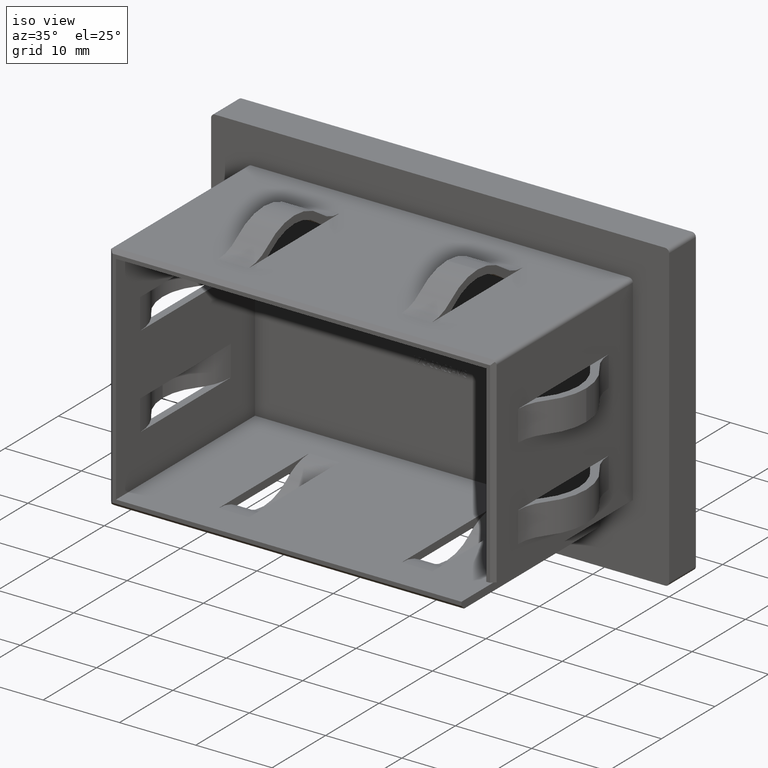
[diagram: clean part render]
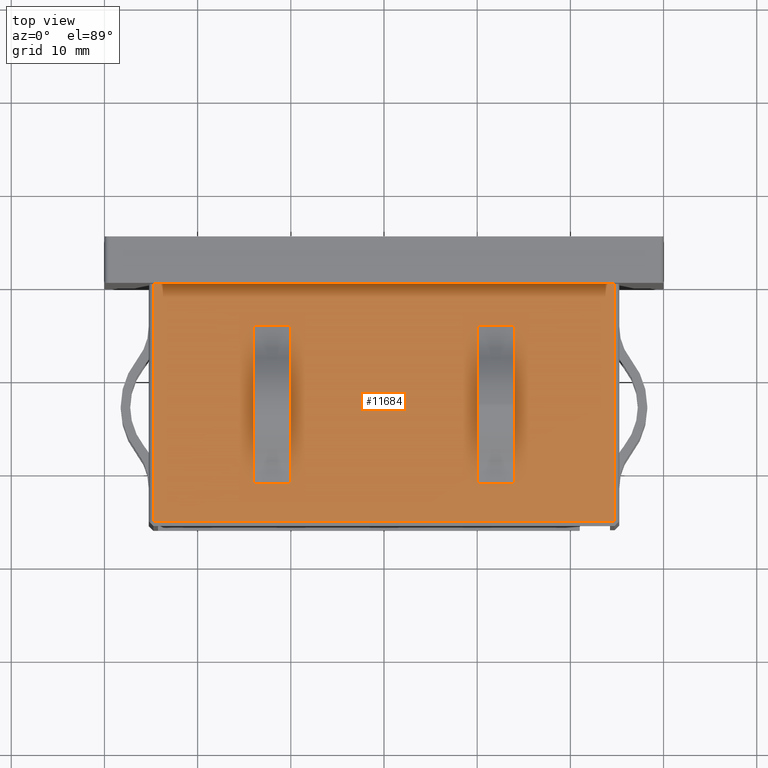
[diagram: tour spotlight — one face highlighted and labeled with its STEP entity id]
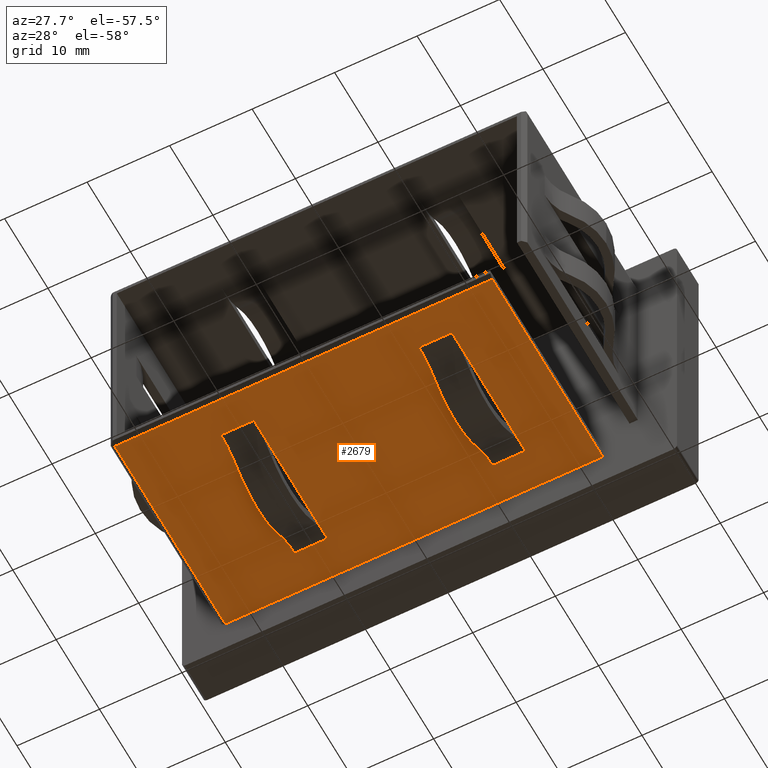
[diagram: tour spotlight — one face highlighted and labeled with its STEP entity id]
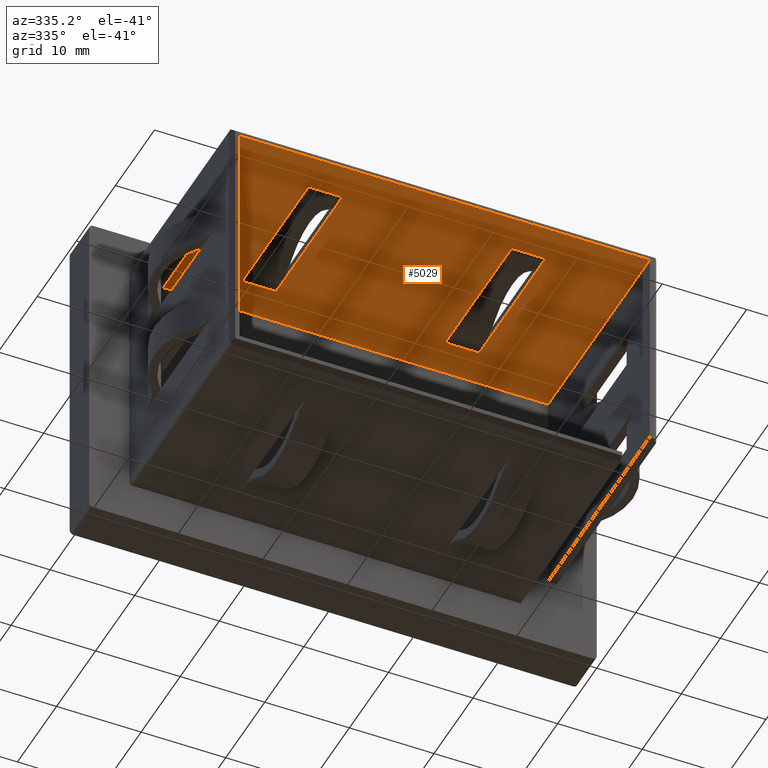
[diagram: tour spotlight — one face highlighted and labeled with its STEP entity id]
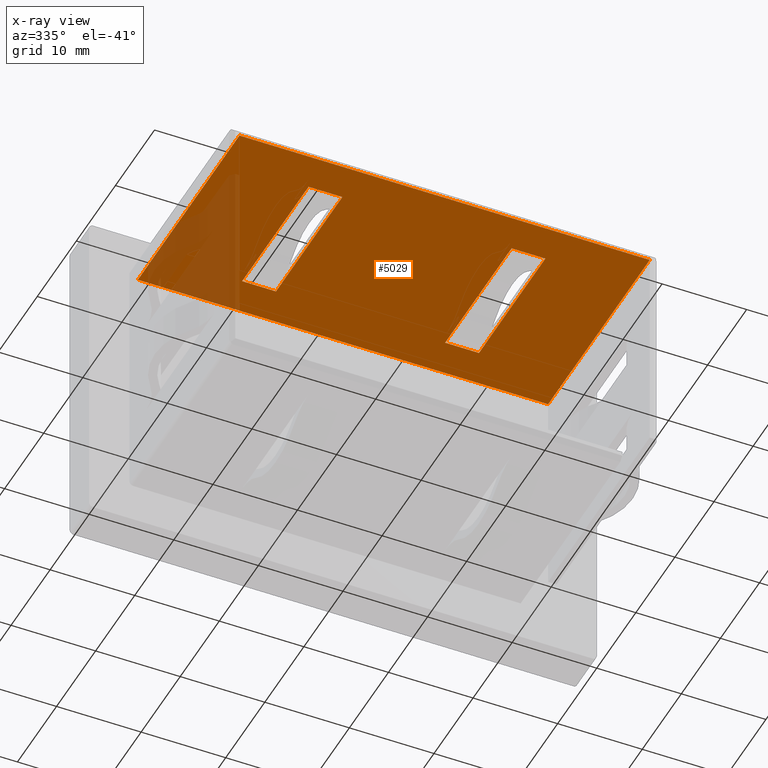
[diagram: x-ray of the same camera — body ghosted, this tour face saturated]
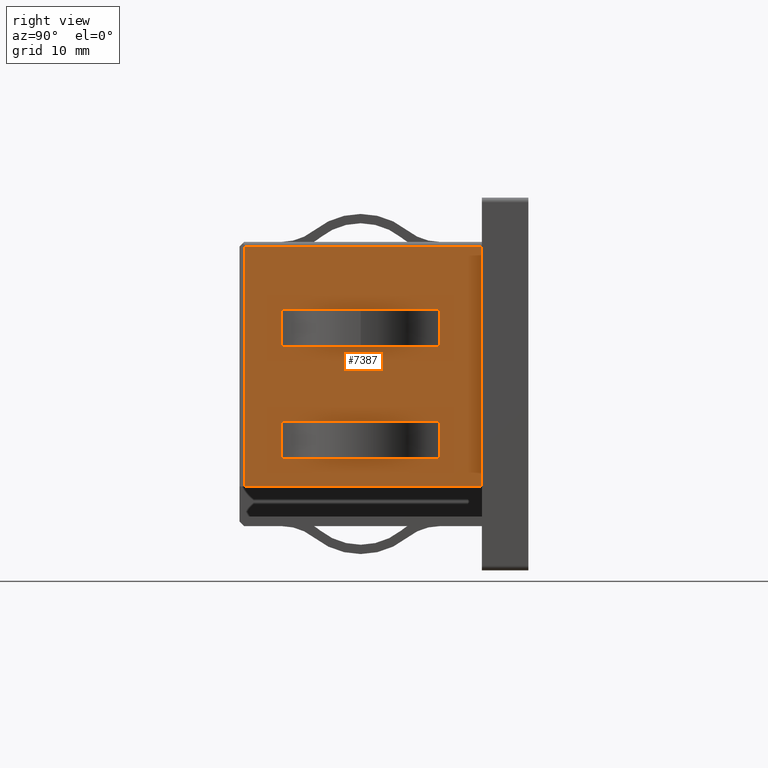
[diagram: tour spotlight — one face highlighted and labeled with its STEP entity id]
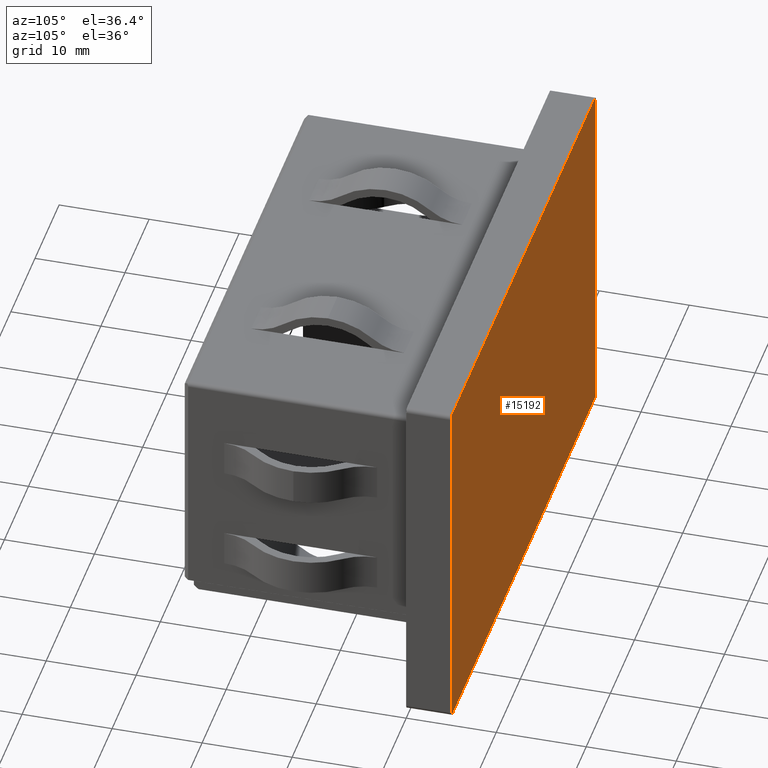
[diagram: tour spotlight — one face highlighted and labeled with its STEP entity id]
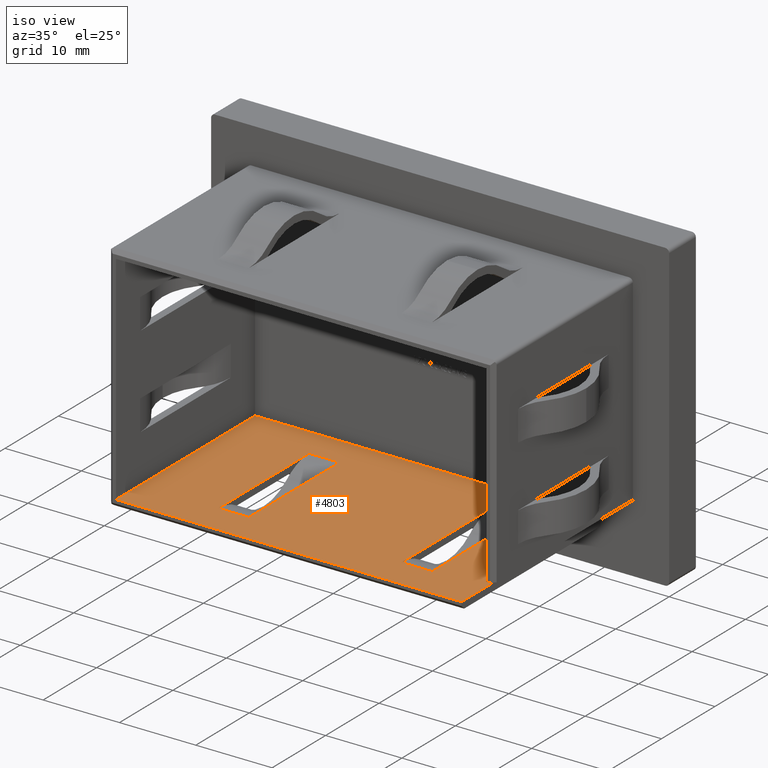
[diagram: tour spotlight — one face highlighted and labeled with its STEP entity id]
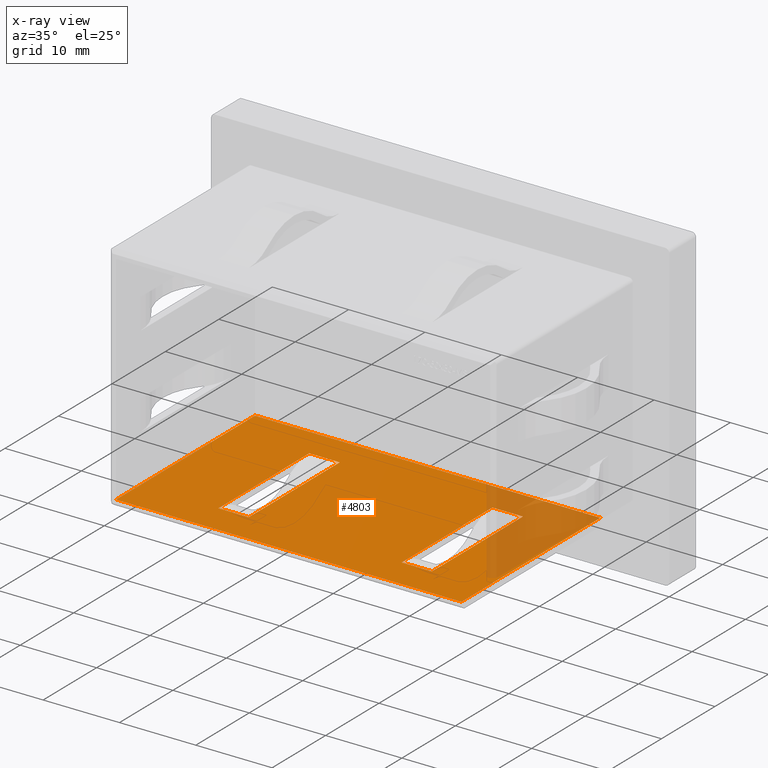
[diagram: x-ray of the same camera — body ghosted, this tour face saturated]
A machine part: a face-by-face anatomy tour. The part has 366 B-rep faces; the first image is the clean iso view, then the 6 largest visible faces are spotlighted one at a time (largest first), each with its STEP entity span.

Face 1 — top view, entity #11684. In plain terms, the highlighted planar face has unit normal (-0, 0, -1).
Definition (entity closure, byte-faithful):
#31 = CARTESIAN_POINT ( 'NONE',  ( 25.24999999999999600, 0.0000000000000000000, 15.24999999999999300 ) ) ;
#71 = VECTOR ( 'NONE', #9283, 1000.000000000000000 ) ;
#85 = ORIENTED_EDGE ( 'NONE', *, *, #5528, .T. ) ;
#240 = CARTESIAN_POINT ( 'NONE',  ( 14.00000000000000400, -4.500000000000003600, 15.24999999999999600 ) ) ;
#333 = DIRECTION ( 'NONE',  ( -1.000000000000000000, 0.0000000000000000000, 0.0000000000000000000 ) ) ;
#394 = DIRECTION ( 'NONE',  ( 0.0000000000000000000, 1.000000000000000000, 0.0000000000000000000 ) ) ;
#430 = VERTEX_POINT ( 'NONE', #5613 ) ;
#484 = VERTEX_POINT ( 'NONE', #11817 ) ;
#520 = LINE ( 'NONE', #7608, #71 ) ;
#538 = DIRECTION ( 'NONE',  ( -0.0000000000000000000, -1.000000000000000000, -0.0000000000000000000 ) ) ;
#552 = VERTEX_POINT ( 'NONE', #5320 ) ;
#704 = LINE ( 'NONE', #5196, #13226 ) ;
#800 = VECTOR ( 'NONE', #9918, 1000.000000000000000 ) ;
#1051 = VECTOR ( 'NONE', #14465, 1000.000000000000000 ) ;
#1070 = VECTOR ( 'NONE', #15415, 1000.000000000000000 ) ;
#1454 = DIRECTION ( 'NONE',  ( 0.0000000000000000000, 1.000000000000000000, 0.0000000000000000000 ) ) ;
#1632 = CARTESIAN_POINT ( 'NONE',  ( 25.24999999999999600, -26.00000000000000000, 15.24999999999999300 ) ) ;
#1793 = LINE ( 'NONE', #14435, #3736 ) ;
#1831 = CARTESIAN_POINT ( 'NONE',  ( 14.00000000000000400, -21.50000000000000000, 15.25000000000000500 ) ) ;
#1841 = CARTESIAN_POINT ( 'NONE',  ( 25.24999999999999600, -25.50000000000000000, 15.24999999999999300 ) ) ;
#1968 = LINE ( 'NONE', #5329, #17394 ) ;
#2155 = ORIENTED_EDGE ( 'NONE', *, *, #2688, .F. ) ;
#2510 = VERTEX_POINT ( 'NONE', #17767 ) ;
#2637 = ORIENTED_EDGE ( 'NONE', *, *, #14196, .T. ) ;
#2688 = EDGE_CURVE ( 'NONE', #11834, #11938, #11168, .T. ) ;
#2808 = VERTEX_POINT ( 'NONE', #17832 ) ;
#2832 = CARTESIAN_POINT ( 'NONE',  ( 10.00000000000000400, -26.00000000000000000, 15.24999999999999300 ) ) ;
#2914 = CARTESIAN_POINT ( 'NONE',  ( 24.74999999999999600, -26.00000000000000000, 15.24999999999999300 ) ) ;
#3278 = VERTEX_POINT ( 'NONE', #16931 ) ;
#3326 = EDGE_CURVE ( 'NONE', #3278, #484, #15137, .T. ) ;
#3499 = CARTESIAN_POINT ( 'NONE',  ( 10.00000000000000200, -18.01403362818848200, 15.24999999999999300 ) ) ;
#3736 = VECTOR ( 'NONE', #4611, 1000.000000000000000 ) ;
#3961 = VERTEX_POINT ( 'NONE', #3499 ) ;
#4126 = LINE ( 'NONE', #1841, #1051 ) ;
#4157 = VERTEX_POINT ( 'NONE', #15225 ) ;
#4611 = DIRECTION ( 'NONE',  ( 0.0000000000000000000, 1.000000000000000000, 0.0000000000000000000 ) ) ;
#4829 = CARTESIAN_POINT ( 'NONE',  ( 10.00000000000000400, -21.50000000000000000, 15.25000000000000500 ) ) ;
#5085 = ORIENTED_EDGE ( 'NONE', *, *, #15193, .F. ) ;
#5196 = CARTESIAN_POINT ( 'NONE',  ( -9.999999999999998200, -26.00000000000000000, 15.24999999999999300 ) ) ;
#5320 = CARTESIAN_POINT ( 'NONE',  ( -9.999999999999996400, -7.985966215470624800, 15.24999999999999300 ) ) ;
#5329 = CARTESIAN_POINT ( 'NONE',  ( 14.00000000000000400, -26.00000000000000000, 15.24999999999999300 ) ) ;
#5504 = DIRECTION ( 'NONE',  ( 0.0000000000000000000, -1.000000000000000000, 0.0000000000000000000 ) ) ;
#5528 = EDGE_CURVE ( 'NONE', #7665, #3278, #6873, .T. ) ;
#5555 = EDGE_CURVE ( 'NONE', #7795, #13604, #17961, .T. ) ;
#5572 = DIRECTION ( 'NONE',  ( 0.0000000000000000000, 1.000000000000000000, 0.0000000000000000000 ) ) ;
#5611 = VECTOR ( 'NONE', #5504, 1000.000000000000000 ) ;
#5613 = CARTESIAN_POINT ( 'NONE',  ( -9.999999999999998200, -21.50000000000000400, 15.24999999999999300 ) ) ;
#5621 = LINE ( 'NONE', #6620, #14201 ) ;
#5776 = LINE ( 'NONE', #9973, #15527 ) ;
#6008 = DIRECTION ( 'NONE',  ( -1.000000000000000000, -0.0000000000000000000, 1.927470528863118800E-016 ) ) ;
#6121 = ORIENTED_EDGE ( 'NONE', *, *, #11691, .T. ) ;
#6362 = DIRECTION ( 'NONE',  ( 1.000000000000000000, -0.0000000000000000000, -1.927470528863118800E-016 ) ) ;
#6422 = EDGE_CURVE ( 'NONE', #484, #13069, #9702, .T. ) ;
#6608 = LINE ( 'NONE', #16986, #10797 ) ;
#6620 = CARTESIAN_POINT ( 'NONE',  ( 14.00000000000000400, -26.00000000000000000, 15.24999999999999300 ) ) ;
#6670 = EDGE_LOOP ( 'NONE', ( #9808, #17750, #7230, #85 ) ) ;
#6755 = EDGE_CURVE ( 'NONE', #552, #13604, #1793, .T. ) ;
#6844 = ORIENTED_EDGE ( 'NONE', *, *, #12282, .F. ) ;
#6873 = LINE ( 'NONE', #2914, #7748 ) ;
#7196 = LINE ( 'NONE', #11227, #13388 ) ;
#7218 = ORIENTED_EDGE ( 'NONE', *, *, #14060, .F. ) ;
#7230 = ORIENTED_EDGE ( 'NONE', *, *, #9675, .T. ) ;
#7339 = DIRECTION ( 'NONE',  ( -1.000000000000000000, -0.0000000000000000000, 1.927470528863118800E-016 ) ) ;
#7579 = CARTESIAN_POINT ( 'NONE',  ( -24.74999999999999600, -26.00000000000000000, 15.24999999999999300 ) ) ;
#7608 = CARTESIAN_POINT ( 'NONE',  ( 14.00000000000000400, -26.00000000000000000, 15.24999999999999300 ) ) ;
#7665 = VERTEX_POINT ( 'NONE', #12436 ) ;
#7682 = ORIENTED_EDGE ( 'NONE', *, *, #14139, .T. ) ;
#7747 = AXIS2_PLACEMENT_3D ( 'NONE', #1632, #17232, #333 ) ;
#7748 = VECTOR ( 'NONE', #17092, 1000.000000000000000 ) ;
#7795 = VERTEX_POINT ( 'NONE', #15362 ) ;
#7944 = FACE_OUTER_BOUND ( 'NONE', #6670, .T. ) ;
#7951 = VERTEX_POINT ( 'NONE', #4829 ) ;
#7999 = DIRECTION ( 'NONE',  ( 0.0000000000000000000, 1.000000000000000000, 0.0000000000000000000 ) ) ;
#8129 = VERTEX_POINT ( 'NONE', #12670 ) ;
#8131 = EDGE_CURVE ( 'NONE', #9014, #552, #704, .T. ) ;
#8169 = FACE_BOUND ( 'NONE', #10768, .T. ) ;
#8243 = EDGE_CURVE ( 'NONE', #15076, #7795, #7196, .T. ) ;
#8284 = EDGE_CURVE ( 'NONE', #4157, #7951, #11388, .T. ) ;
#8384 = ORIENTED_EDGE ( 'NONE', *, *, #17107, .T. ) ;
#8718 = EDGE_CURVE ( 'NONE', #2510, #3961, #15836, .T. ) ;
#8748 = LINE ( 'NONE', #12174, #13404 ) ;
#8944 = CARTESIAN_POINT ( 'NONE',  ( 10.00000000000000400, -4.499999999999997300, 15.24999999999999300 ) ) ;
#9014 = VERTEX_POINT ( 'NONE', #17912 ) ;
#9257 = VECTOR ( 'NONE', #10286, 1000.000000000000000 ) ;
#9283 = DIRECTION ( 'NONE',  ( 0.0000000000000000000, -1.000000000000000000, 0.0000000000000000000 ) ) ;
#9337 = EDGE_LOOP ( 'NONE', ( #7218, #6121, #8384, #13913, #15427, #14072, #13699, #14574 ) ) ;
#9643 = DIRECTION ( 'NONE',  ( 0.0000000000000000000, -1.000000000000000000, 0.0000000000000000000 ) ) ;
#9675 = EDGE_CURVE ( 'NONE', #13069, #7665, #4126, .T. ) ;
#9702 = LINE ( 'NONE', #7579, #16140 ) ;
#9808 = ORIENTED_EDGE ( 'NONE', *, *, #3326, .T. ) ;
#9918 = DIRECTION ( 'NONE',  ( -1.000000000000000000, 0.0000000000000000000, 0.0000000000000000000 ) ) ;
#9924 = LINE ( 'NONE', #11634, #9257 ) ;
#9934 = DIRECTION ( 'NONE',  ( 0.0000000000000000000, 1.000000000000000000, 0.0000000000000000000 ) ) ;
#9973 = CARTESIAN_POINT ( 'NONE',  ( -14.00000000000000200, -26.00000000000000000, 15.24999999999999300 ) ) ;
#10286 = DIRECTION ( 'NONE',  ( 0.0000000000000000000, -1.000000000000000000, 0.0000000000000000000 ) ) ;
#10374 = EDGE_CURVE ( 'NONE', #11834, #2808, #520, .T. ) ;
#10425 = ORIENTED_EDGE ( 'NONE', *, *, #10374, .T. ) ;
#10501 = VECTOR ( 'NONE', #6008, 1000.000000000000000 ) ;
#10682 = CARTESIAN_POINT ( 'NONE',  ( -13.99999999999999600, -7.985966215470624800, 15.24999999999999300 ) ) ;
#10768 = EDGE_LOOP ( 'NONE', ( #2155, #10425, #2637, #7682, #16816, #5085, #11216, #6844 ) ) ;
#10797 = VECTOR ( 'NONE', #394, 1000.000000000000000 ) ;
#11083 = CARTESIAN_POINT ( 'NONE',  ( -9.999999999999998200, -4.499999999999997300, 15.25000000000000000 ) ) ;
#11110 = CARTESIAN_POINT ( 'NONE',  ( -13.99999999999999800, -21.49999984365910400, 15.25000000000000000 ) ) ;
#11168 = LINE ( 'NONE', #17390, #10501 ) ;
#11216 = ORIENTED_EDGE ( 'NONE', *, *, #8718, .F. ) ;
#11227 = CARTESIAN_POINT ( 'NONE',  ( -14.00000000000000200, -26.00000000000000000, 15.24999999999999300 ) ) ;
#11388 = LINE ( 'NONE', #1831, #16726 ) ;
#11406 = LINE ( 'NONE', #16677, #13186 ) ;
#11634 = CARTESIAN_POINT ( 'NONE',  ( 10.00000000000000400, -26.00000000000000000, 15.24999999999999300 ) ) ;
#11684 = ADVANCED_FACE ( 'NONE', ( #8169, #7944, #11933 ), #15623, .F. ) ;
#11691 = EDGE_CURVE ( 'NONE', #12655, #8129, #6608, .T. ) ;
#11817 = CARTESIAN_POINT ( 'NONE',  ( -24.74999999999998200, 0.0000000000000000000, 15.24999999999999300 ) ) ;
#11834 = VERTEX_POINT ( 'NONE', #240 ) ;
#11933 = FACE_BOUND ( 'NONE', #9337, .T. ) ;
#11938 = VERTEX_POINT ( 'NONE', #8944 ) ;
#11957 = VECTOR ( 'NONE', #17218, 1000.000000000000000 ) ;
#12068 = VERTEX_POINT ( 'NONE', #18110 ) ;
#12174 = CARTESIAN_POINT ( 'NONE',  ( -13.99999999999999800, -21.50000000000000000, 15.25000000000001100 ) ) ;
#12282 = EDGE_CURVE ( 'NONE', #11938, #2510, #9924, .T. ) ;
#12436 = CARTESIAN_POINT ( 'NONE',  ( 24.74999999999999600, -25.50000000000000000, 15.24999999999999300 ) ) ;
#12655 = VERTEX_POINT ( 'NONE', #11110 ) ;
#12670 = CARTESIAN_POINT ( 'NONE',  ( -13.99999999999999600, -18.01403362818848600, 15.24999999999999300 ) ) ;
#13069 = VERTEX_POINT ( 'NONE', #14429 ) ;
#13186 = VECTOR ( 'NONE', #7999, 1000.000000000000000 ) ;
#13226 = VECTOR ( 'NONE', #9934, 1000.000000000000000 ) ;
#13388 = VECTOR ( 'NONE', #5572, 1000.000000000000000 ) ;
#13404 = VECTOR ( 'NONE', #6362, 1000.000000000000000 ) ;
#13507 = EDGE_CURVE ( 'NONE', #430, #9014, #11406, .T. ) ;
#13604 = VERTEX_POINT ( 'NONE', #11083 ) ;
#13699 = ORIENTED_EDGE ( 'NONE', *, *, #8131, .F. ) ;
#13913 = ORIENTED_EDGE ( 'NONE', *, *, #8243, .T. ) ;
#14060 = EDGE_CURVE ( 'NONE', #12655, #430, #8748, .T. ) ;
#14072 = ORIENTED_EDGE ( 'NONE', *, *, #6755, .F. ) ;
#14139 = EDGE_CURVE ( 'NONE', #12068, #4157, #1968, .T. ) ;
#14196 = EDGE_CURVE ( 'NONE', #2808, #12068, #5621, .T. ) ;
#14201 = VECTOR ( 'NONE', #17960, 1000.000000000000000 ) ;
#14429 = CARTESIAN_POINT ( 'NONE',  ( -24.74999999999999600, -25.50000000000000000, 15.24999999999999300 ) ) ;
#14435 = CARTESIAN_POINT ( 'NONE',  ( -9.999999999999998200, -26.00000000000000000, 15.24999999999999300 ) ) ;
#14465 = DIRECTION ( 'NONE',  ( 1.000000000000000000, 0.0000000000000000000, 0.0000000000000000000 ) ) ;
#14574 = ORIENTED_EDGE ( 'NONE', *, *, #13507, .F. ) ;
#14660 = LINE ( 'NONE', #15401, #5611 ) ;
#15076 = VERTEX_POINT ( 'NONE', #10682 ) ;
#15137 = LINE ( 'NONE', #31, #800 ) ;
#15193 = EDGE_CURVE ( 'NONE', #3961, #7951, #14660, .T. ) ;
#15225 = CARTESIAN_POINT ( 'NONE',  ( 14.00000000000000400, -21.50000000000000000, 15.24999999999999300 ) ) ;
#15362 = CARTESIAN_POINT ( 'NONE',  ( -13.99999999999999500, -4.499999999999997300, 15.24999999999999300 ) ) ;
#15401 = CARTESIAN_POINT ( 'NONE',  ( 10.00000000000000400, -26.00000000000000000, 15.24999999999999300 ) ) ;
#15415 = DIRECTION ( 'NONE',  ( 0.0000000000000000000, -1.000000000000000000, 0.0000000000000000000 ) ) ;
#15427 = ORIENTED_EDGE ( 'NONE', *, *, #5555, .T. ) ;
#15527 = VECTOR ( 'NONE', #1454, 1000.000000000000000 ) ;
#15623 = PLANE ( 'NONE',  #7747 ) ;
#15836 = LINE ( 'NONE', #2832, #1070 ) ;
#16044 = CARTESIAN_POINT ( 'NONE',  ( -13.99999999999999800, -4.499999999999997300, 15.25000000000000000 ) ) ;
#16140 = VECTOR ( 'NONE', #538, 1000.000000000000000 ) ;
#16677 = CARTESIAN_POINT ( 'NONE',  ( -9.999999999999998200, -26.00000000000000000, 15.24999999999999300 ) ) ;
#16726 = VECTOR ( 'NONE', #7339, 1000.000000000000000 ) ;
#16816 = ORIENTED_EDGE ( 'NONE', *, *, #8284, .T. ) ;
#16931 = CARTESIAN_POINT ( 'NONE',  ( 24.74999999999999600, 0.0000000000000000000, 15.24999999999999300 ) ) ;
#16986 = CARTESIAN_POINT ( 'NONE',  ( -14.00000000000000200, -26.00000000000000000, 15.24999999999999300 ) ) ;
#17092 = DIRECTION ( 'NONE',  ( 0.0000000000000000000, 1.000000000000000000, 0.0000000000000000000 ) ) ;
#17107 = EDGE_CURVE ( 'NONE', #8129, #15076, #5776, .T. ) ;
#17218 = DIRECTION ( 'NONE',  ( 1.000000000000000000, -0.0000000000000000000, -1.927470528863118800E-016 ) ) ;
#17232 = DIRECTION ( 'NONE',  ( -0.0000000000000000000, 0.0000000000000000000, -1.000000000000000000 ) ) ;
#17390 = CARTESIAN_POINT ( 'NONE',  ( 14.00000000000000400, -4.499999999999997300, 15.24999999999999500 ) ) ;
#17394 = VECTOR ( 'NONE', #9643, 1000.000000000000000 ) ;
#17750 = ORIENTED_EDGE ( 'NONE', *, *, #6422, .T. ) ;
#17767 = CARTESIAN_POINT ( 'NONE',  ( 10.00000000000000200, -7.985966215470631900, 15.24999999999999300 ) ) ;
#17832 = CARTESIAN_POINT ( 'NONE',  ( 14.00000000000000200, -7.985966215470631900, 15.24999999999999300 ) ) ;
#17912 = CARTESIAN_POINT ( 'NONE',  ( -9.999999999999996400, -18.01403362818846800, 15.24999999999999300 ) ) ;
#17960 = DIRECTION ( 'NONE',  ( 0.0000000000000000000, -1.000000000000000000, 0.0000000000000000000 ) ) ;
#17961 = LINE ( 'NONE', #16044, #11957 ) ;
#18110 = CARTESIAN_POINT ( 'NONE',  ( 14.00000000000000200, -18.01403362818848200, 15.24999999999999300 ) ) ;

Face 2 — auxiliary view, entity #2679. In plain terms, the highlighted planar face has unit normal (0, 0, 1).
Definition (entity closure, byte-faithful):
#26 = EDGE_LOOP ( 'NONE', ( #16352, #1395, #8219, #11829, #4394, #4427, #17536, #5796 ) ) ;
#332 = ORIENTED_EDGE ( 'NONE', *, *, #10966, .T. ) ;
#450 = ORIENTED_EDGE ( 'NONE', *, *, #3851, .T. ) ;
#560 = VECTOR ( 'NONE', #15907, 1000.000000000000000 ) ;
#1180 = LINE ( 'NONE', #18197, #2495 ) ;
#1239 = ORIENTED_EDGE ( 'NONE', *, *, #12978, .T. ) ;
#1395 = ORIENTED_EDGE ( 'NONE', *, *, #10434, .T. ) ;
#1647 = CARTESIAN_POINT ( 'NONE',  ( -24.74999999999999600, -26.00000000000000000, -15.24999999999999300 ) ) ;
#2106 = VECTOR ( 'NONE', #13348, 1000.000000000000000 ) ;
#2220 = VERTEX_POINT ( 'NONE', #8174 ) ;
#2230 = ORIENTED_EDGE ( 'NONE', *, *, #9545, .T. ) ;
#2380 = ORIENTED_EDGE ( 'NONE', *, *, #12718, .T. ) ;
#2495 = VECTOR ( 'NONE', #13972, 1000.000000000000000 ) ;
#2679 = ADVANCED_FACE ( 'NONE', ( #13819, #14502, #12286 ), #7307, .F. ) ;
#2751 = VERTEX_POINT ( 'NONE', #3212 ) ;
#2767 = CARTESIAN_POINT ( 'NONE',  ( 9.999999999999998200, -21.50000000000000000, -15.24999999999999600 ) ) ;
#3000 = CARTESIAN_POINT ( 'NONE',  ( -14.00000000000000400, -26.00000000000000000, -15.24999999999999500 ) ) ;
#3070 = EDGE_LOOP ( 'NONE', ( #6457, #332, #2230, #18048, #450, #10380, #4253, #6231 ) ) ;
#3166 = CARTESIAN_POINT ( 'NONE',  ( 13.99999999999999600, -18.01403362818847900, -15.24999999999999800 ) ) ;
#3190 = EDGE_LOOP ( 'NONE', ( #1239, #2380, #12550, #10970 ) ) ;
#3206 = VECTOR ( 'NONE', #12274, 1000.000000000000000 ) ;
#3212 = CARTESIAN_POINT ( 'NONE',  ( 21.00000000000000400, -25.50000000000000000, -15.24999999999999800 ) ) ;
#3644 = VERTEX_POINT ( 'NONE', #11250 ) ;
#3805 = LINE ( 'NONE', #14982, #8625 ) ;
#3851 = EDGE_CURVE ( 'NONE', #16031, #10217, #6247, .T. ) ;
#3920 = CARTESIAN_POINT ( 'NONE',  ( 9.999999999999998200, -21.50000000000000000, -15.25000000000001200 ) ) ;
#3944 = VERTEX_POINT ( 'NONE', #6430 ) ;
#4019 = EDGE_CURVE ( 'NONE', #3944, #2220, #5810, .T. ) ;
#4230 = EDGE_CURVE ( 'NONE', #17286, #4374, #8665, .T. ) ;
#4253 = ORIENTED_EDGE ( 'NONE', *, *, #15622, .F. ) ;
#4328 = VECTOR ( 'NONE', #16591, 1000.000000000000000 ) ;
#4337 = VERTEX_POINT ( 'NONE', #17537 ) ;
#4358 = CARTESIAN_POINT ( 'NONE',  ( 21.00000000000000400, -26.00000000000000000, -15.24999999999999800 ) ) ;
#4374 = VERTEX_POINT ( 'NONE', #6025 ) ;
#4394 = ORIENTED_EDGE ( 'NONE', *, *, #8632, .T. ) ;
#4418 = DIRECTION ( 'NONE',  ( -1.000000000000000000, 0.0000000000000000000, 1.125226038471442800E-016 ) ) ;
#4427 = ORIENTED_EDGE ( 'NONE', *, *, #4684, .F. ) ;
#4463 = LINE ( 'NONE', #3000, #15753 ) ;
#4553 = VECTOR ( 'NONE', #7111, 1000.000000000000000 ) ;
#4598 = EDGE_CURVE ( 'NONE', #2220, #6204, #17762, .T. ) ;
#4684 = EDGE_CURVE ( 'NONE', #11626, #4337, #10656, .T. ) ;
#4743 = DIRECTION ( 'NONE',  ( 3.697785493223492800E-032, -1.000000000000000000, -4.160844521657041300E-048 ) ) ;
#4844 = DIRECTION ( 'NONE',  ( 1.125226038471442800E-016, 0.0000000000000000000, 1.000000000000000000 ) ) ;
#5124 = VERTEX_POINT ( 'NONE', #17420 ) ;
#5273 = LINE ( 'NONE', #5896, #12347 ) ;
#5403 = CARTESIAN_POINT ( 'NONE',  ( 14.00000000000000200, -4.499999999999993800, -15.24999999999999800 ) ) ;
#5462 = EDGE_CURVE ( 'NONE', #2751, #13321, #15732, .T. ) ;
#5468 = CARTESIAN_POINT ( 'NONE',  ( -10.00000000000000400, -4.499999999999993800, -15.24999999999999500 ) ) ;
#5747 = DIRECTION ( 'NONE',  ( 3.697785493223492800E-032, -1.000000000000000000, -4.160844521657041300E-048 ) ) ;
#5764 = EDGE_CURVE ( 'NONE', #16288, #16078, #1180, .T. ) ;
#5796 = ORIENTED_EDGE ( 'NONE', *, *, #11131, .F. ) ;
#5810 = LINE ( 'NONE', #11929, #2106 ) ;
#5896 = CARTESIAN_POINT ( 'NONE',  ( -25.24999999999999600, -25.50000000000000000, -15.24999999999999300 ) ) ;
#6025 = CARTESIAN_POINT ( 'NONE',  ( -14.00000000000000400, -21.50000000000000000, -15.24999999999999500 ) ) ;
#6120 = CARTESIAN_POINT ( 'NONE',  ( -25.24999999999999600, -26.00000000000000000, -15.24999999999999300 ) ) ;
#6203 = LINE ( 'NONE', #11492, #14383 ) ;
#6204 = VERTEX_POINT ( 'NONE', #2767 ) ;
#6231 = ORIENTED_EDGE ( 'NONE', *, *, #10269, .F. ) ;
#6247 = LINE ( 'NONE', #14662, #560 ) ;
#6430 = CARTESIAN_POINT ( 'NONE',  ( 9.999999999999996400, -7.985966215470621200, -15.24999999999999600 ) ) ;
#6457 = ORIENTED_EDGE ( 'NONE', *, *, #4230, .F. ) ;
#6762 = CARTESIAN_POINT ( 'NONE',  ( -14.00000000000000400, -4.499999999999994700, -15.25000000000001100 ) ) ;
#6936 = CARTESIAN_POINT ( 'NONE',  ( -10.00000000000000400, -26.00000000000000000, -15.24999999999999500 ) ) ;
#7100 = VECTOR ( 'NONE', #17833, 1000.000000000000000 ) ;
#7111 = DIRECTION ( 'NONE',  ( 3.697785493223492800E-032, 1.000000000000000000, -4.160844521657041300E-048 ) ) ;
#7215 = VERTEX_POINT ( 'NONE', #14910 ) ;
#7307 = PLANE ( 'NONE',  #14449 ) ;
#8064 = CARTESIAN_POINT ( 'NONE',  ( 14.00000000000000200, -26.00000000000000000, -15.24999999999999800 ) ) ;
#8135 = LINE ( 'NONE', #1647, #15240 ) ;
#8149 = DIRECTION ( 'NONE',  ( -1.000000000000000000, -0.0000000000000000000, 1.927470528863118800E-016 ) ) ;
#8167 = DIRECTION ( 'NONE',  ( 3.697785493223492800E-032, -1.000000000000000000, -4.160844521657041300E-048 ) ) ;
#8174 = CARTESIAN_POINT ( 'NONE',  ( 9.999999999999996400, -18.01403362818848200, -15.24999999999999600 ) ) ;
#8219 = ORIENTED_EDGE ( 'NONE', *, *, #4019, .T. ) ;
#8459 = DIRECTION ( 'NONE',  ( -0.0000000000000000000, 1.000000000000000000, 0.0000000000000000000 ) ) ;
#8625 = VECTOR ( 'NONE', #17585, 1000.000000000000000 ) ;
#8632 = EDGE_CURVE ( 'NONE', #6204, #4337, #16941, .T. ) ;
#8665 = LINE ( 'NONE', #13712, #16892 ) ;
#8700 = CARTESIAN_POINT ( 'NONE',  ( 13.99999999999999600, -7.985966215470624800, -15.25000000000000000 ) ) ;
#8804 = EDGE_CURVE ( 'NONE', #10102, #16031, #15606, .T. ) ;
#8989 = CARTESIAN_POINT ( 'NONE',  ( -10.00000000000000200, -7.985966215470624800, -15.24999999999999500 ) ) ;
#9063 = LINE ( 'NONE', #6936, #15942 ) ;
#9366 = CARTESIAN_POINT ( 'NONE',  ( -14.00000000000000400, -26.00000000000000000, -15.24999999999999500 ) ) ;
#9545 = EDGE_CURVE ( 'NONE', #15649, #10102, #9845, .T. ) ;
#9646 = VERTEX_POINT ( 'NONE', #8700 ) ;
#9661 = VECTOR ( 'NONE', #4743, 1000.000000000000000 ) ;
#9845 = LINE ( 'NONE', #11241, #16504 ) ;
#10102 = VERTEX_POINT ( 'NONE', #8989 ) ;
#10164 = CARTESIAN_POINT ( 'NONE',  ( -14.00000000000000200, -7.985966215470624800, -15.24999999999999500 ) ) ;
#10217 = VERTEX_POINT ( 'NONE', #6762 ) ;
#10269 = EDGE_CURVE ( 'NONE', #4374, #5124, #6203, .T. ) ;
#10380 = ORIENTED_EDGE ( 'NONE', *, *, #16575, .F. ) ;
#10426 = VECTOR ( 'NONE', #8167, 1000.000000000000000 ) ;
#10434 = EDGE_CURVE ( 'NONE', #16288, #3944, #3805, .T. ) ;
#10486 = EDGE_CURVE ( 'NONE', #3644, #13321, #10616, .T. ) ;
#10616 = LINE ( 'NONE', #16409, #7100 ) ;
#10620 = VECTOR ( 'NONE', #14231, 1000.000000000000000 ) ;
#10656 = LINE ( 'NONE', #8064, #13976 ) ;
#10674 = LINE ( 'NONE', #9366, #3206 ) ;
#10812 = CARTESIAN_POINT ( 'NONE',  ( -10.00000000000000400, -21.49999984365910100, -15.25000000000000400 ) ) ;
#10966 = EDGE_CURVE ( 'NONE', #17286, #15649, #9063, .T. ) ;
#10970 = ORIENTED_EDGE ( 'NONE', *, *, #5462, .F. ) ;
#11131 = EDGE_CURVE ( 'NONE', #16078, #9646, #12381, .T. ) ;
#11171 = CARTESIAN_POINT ( 'NONE',  ( 14.00000000000000200, -26.00000000000000000, -15.24999999999999800 ) ) ;
#11241 = CARTESIAN_POINT ( 'NONE',  ( -10.00000000000000400, -26.00000000000000000, -15.24999999999999500 ) ) ;
#11250 = CARTESIAN_POINT ( 'NONE',  ( -24.74999999999999600, 0.0000000000000000000, -15.24999999999999300 ) ) ;
#11266 = VECTOR ( 'NONE', #5747, 1000.000000000000000 ) ;
#11492 = CARTESIAN_POINT ( 'NONE',  ( -14.00000000000000400, -26.00000000000000000, -15.24999999999999500 ) ) ;
#11626 = VERTEX_POINT ( 'NONE', #3166 ) ;
#11690 = VERTEX_POINT ( 'NONE', #10164 ) ;
#11829 = ORIENTED_EDGE ( 'NONE', *, *, #4598, .T. ) ;
#11929 = CARTESIAN_POINT ( 'NONE',  ( 9.999999999999998200, -26.00000000000000000, -15.24999999999999600 ) ) ;
#12264 = CARTESIAN_POINT ( 'NONE',  ( 9.999999999999998200, -26.00000000000000000, -15.24999999999999600 ) ) ;
#12274 = DIRECTION ( 'NONE',  ( 3.697785493223492800E-032, 1.000000000000000000, -4.160844521657041300E-048 ) ) ;
#12286 = FACE_BOUND ( 'NONE', #26, .T. ) ;
#12347 = VECTOR ( 'NONE', #4418, 1000.000000000000000 ) ;
#12381 = LINE ( 'NONE', #11171, #11266 ) ;
#12550 = ORIENTED_EDGE ( 'NONE', *, *, #10486, .T. ) ;
#12718 = EDGE_CURVE ( 'NONE', #7215, #3644, #8135, .T. ) ;
#12810 = DIRECTION ( 'NONE',  ( 3.697785493223492800E-032, 1.000000000000000000, -4.160844521657041300E-048 ) ) ;
#12978 = EDGE_CURVE ( 'NONE', #2751, #7215, #5273, .T. ) ;
#13191 = CARTESIAN_POINT ( 'NONE',  ( 14.00000000000000200, -26.00000000000000000, -15.24999999999999800 ) ) ;
#13321 = VERTEX_POINT ( 'NONE', #14447 ) ;
#13347 = CARTESIAN_POINT ( 'NONE',  ( 9.999999999999996400, -4.499999999999999100, -15.25000000000000900 ) ) ;
#13348 = DIRECTION ( 'NONE',  ( 3.697785493223492800E-032, -1.000000000000000000, -4.160844521657041300E-048 ) ) ;
#13382 = EDGE_CURVE ( 'NONE', #9646, #11626, #16779, .T. ) ;
#13712 = CARTESIAN_POINT ( 'NONE',  ( -10.00000000000000400, -21.50000000000000000, -15.25000000000000700 ) ) ;
#13819 = FACE_BOUND ( 'NONE', #3070, .T. ) ;
#13972 = DIRECTION ( 'NONE',  ( 1.000000000000000000, -0.0000000000000000000, -1.927470528863118800E-016 ) ) ;
#13976 = VECTOR ( 'NONE', #18099, 1000.000000000000000 ) ;
#14231 = DIRECTION ( 'NONE',  ( -0.0000000000000000000, 1.000000000000000000, -0.0000000000000000000 ) ) ;
#14383 = VECTOR ( 'NONE', #12810, 1000.000000000000000 ) ;
#14447 = CARTESIAN_POINT ( 'NONE',  ( 21.00000000000000400, 0.0000000000000000000, -15.24999999999999800 ) ) ;
#14449 = AXIS2_PLACEMENT_3D ( 'NONE', #6120, #4844, #15975 ) ;
#14502 = FACE_OUTER_BOUND ( 'NONE', #3190, .T. ) ;
#14662 = CARTESIAN_POINT ( 'NONE',  ( -10.00000000000000400, -4.499999999999994700, -15.25000000000001100 ) ) ;
#14910 = CARTESIAN_POINT ( 'NONE',  ( -24.74999999999999600, -25.50000000000000000, -15.24999999999999300 ) ) ;
#14982 = CARTESIAN_POINT ( 'NONE',  ( 9.999999999999998200, -26.00000000000000000, -15.24999999999999600 ) ) ;
#15240 = VECTOR ( 'NONE', #8459, 1000.000000000000000 ) ;
#15533 = CARTESIAN_POINT ( 'NONE',  ( -10.00000000000000400, -26.00000000000000000, -15.24999999999999500 ) ) ;
#15606 = LINE ( 'NONE', #15533, #4553 ) ;
#15622 = EDGE_CURVE ( 'NONE', #5124, #11690, #10674, .T. ) ;
#15649 = VERTEX_POINT ( 'NONE', #18040 ) ;
#15732 = LINE ( 'NONE', #4358, #10620 ) ;
#15753 = VECTOR ( 'NONE', #17184, 1000.000000000000000 ) ;
#15907 = DIRECTION ( 'NONE',  ( -1.000000000000000000, -0.0000000000000000000, 1.927470528863118800E-016 ) ) ;
#15942 = VECTOR ( 'NONE', #18131, 1000.000000000000000 ) ;
#15975 = DIRECTION ( 'NONE',  ( 1.000000000000000000, 0.0000000000000000000, -1.125226038471442800E-016 ) ) ;
#16031 = VERTEX_POINT ( 'NONE', #5468 ) ;
#16078 = VERTEX_POINT ( 'NONE', #5403 ) ;
#16288 = VERTEX_POINT ( 'NONE', #13347 ) ;
#16352 = ORIENTED_EDGE ( 'NONE', *, *, #5764, .F. ) ;
#16409 = CARTESIAN_POINT ( 'NONE',  ( -25.24999999999999600, -0.0000000000000000000, -15.24999999999999300 ) ) ;
#16504 = VECTOR ( 'NONE', #16837, 1000.000000000000000 ) ;
#16575 = EDGE_CURVE ( 'NONE', #11690, #10217, #4463, .T. ) ;
#16591 = DIRECTION ( 'NONE',  ( 1.000000000000000000, -0.0000000000000000000, -1.927470528863118800E-016 ) ) ;
#16779 = LINE ( 'NONE', #13191, #9661 ) ;
#16837 = DIRECTION ( 'NONE',  ( 3.697785493223492800E-032, 1.000000000000000000, -4.160844521657041300E-048 ) ) ;
#16892 = VECTOR ( 'NONE', #8149, 1000.000000000000000 ) ;
#16941 = LINE ( 'NONE', #3920, #4328 ) ;
#17184 = DIRECTION ( 'NONE',  ( 3.697785493223492800E-032, 1.000000000000000000, -4.160844521657041300E-048 ) ) ;
#17286 = VERTEX_POINT ( 'NONE', #10812 ) ;
#17420 = CARTESIAN_POINT ( 'NONE',  ( -14.00000000000000200, -18.01403362818847900, -15.24999999999999500 ) ) ;
#17536 = ORIENTED_EDGE ( 'NONE', *, *, #13382, .F. ) ;
#17537 = CARTESIAN_POINT ( 'NONE',  ( 13.99999999999999800, -21.50000000000000000, -15.25000000000001200 ) ) ;
#17585 = DIRECTION ( 'NONE',  ( 3.697785493223492800E-032, -1.000000000000000000, -4.160844521657041300E-048 ) ) ;
#17762 = LINE ( 'NONE', #12264, #10426 ) ;
#17833 = DIRECTION ( 'NONE',  ( 1.000000000000000000, 0.0000000000000000000, -1.125226038471442500E-016 ) ) ;
#18040 = CARTESIAN_POINT ( 'NONE',  ( -10.00000000000000200, -18.01403362818847900, -15.24999999999999500 ) ) ;
#18048 = ORIENTED_EDGE ( 'NONE', *, *, #8804, .T. ) ;
#18099 = DIRECTION ( 'NONE',  ( 3.697785493223492800E-032, -1.000000000000000000, -4.160844521657041300E-048 ) ) ;
#18131 = DIRECTION ( 'NONE',  ( 3.697785493223492800E-032, 1.000000000000000000, -4.160844521657041300E-048 ) ) ;
#18197 = CARTESIAN_POINT ( 'NONE',  ( 9.999999999999998200, -4.499999999999994700, -15.25000000000001600 ) ) ;

Face 3 — auxiliary view, entity #5029. An x-ray twin of the same camera follows (body ghosted, this face saturated) — the face is partly hidden behind the body. In plain terms, the highlighted planar face has unit normal (-0, 0, 1).
Definition (entity closure, byte-faithful):
#95 = VECTOR ( 'NONE', #2554, 1000.000000000000000 ) ;
#390 = CARTESIAN_POINT ( 'NONE',  ( -24.24999999999999600, 0.0000000000000000000, 14.24999999999999300 ) ) ;
#745 = LINE ( 'NONE', #15793, #7750 ) ;
#836 = CARTESIAN_POINT ( 'NONE',  ( 10.00000000000000200, -21.50000000000000000, 14.24999999999999300 ) ) ;
#970 = CARTESIAN_POINT ( 'NONE',  ( -9.999999999999996400, -4.499999999999995600, 14.25000000000001200 ) ) ;
#1094 = DIRECTION ( 'NONE',  ( -1.000000000000000000, -0.0000000000000000000, 1.927470528863118800E-016 ) ) ;
#1230 = CARTESIAN_POINT ( 'NONE',  ( -24.24999999999999600, -26.00000000000000000, 14.24999999999999300 ) ) ;
#1456 = CARTESIAN_POINT ( 'NONE',  ( -13.99999999999999800, -21.50000000000000400, 14.24999999999999500 ) ) ;
#1519 = PLANE ( 'NONE',  #5351 ) ;
#1616 = LINE ( 'NONE', #5530, #8863 ) ;
#1981 = EDGE_CURVE ( 'NONE', #12417, #3914, #9210, .T. ) ;
#2001 = CARTESIAN_POINT ( 'NONE',  ( 10.00000000000000200, -4.499999999999995600, 14.25000000000000700 ) ) ;
#2122 = CARTESIAN_POINT ( 'NONE',  ( 10.00000000000000200, -1.163285154478565100E-014, 14.25000000000001100 ) ) ;
#2440 = LINE ( 'NONE', #2122, #5702 ) ;
#2528 = VECTOR ( 'NONE', #13616, 1000.000000000000000 ) ;
#2554 = DIRECTION ( 'NONE',  ( -1.000000000000000000, -0.0000000000000000000, 1.927470528863118800E-016 ) ) ;
#2672 = CARTESIAN_POINT ( 'NONE',  ( 10.00000000000000200, -4.499999999999995600, 14.25000000000000700 ) ) ;
#2931 = DIRECTION ( 'NONE',  ( -1.073024830501117800E-016, 0.0000000000000000000, 1.000000000000000000 ) ) ;
#3115 = VECTOR ( 'NONE', #15151, 1000.000000000000000 ) ;
#3160 = ORIENTED_EDGE ( 'NONE', *, *, #1981, .F. ) ;
#3421 = VERTEX_POINT ( 'NONE', #836 ) ;
#3914 = VERTEX_POINT ( 'NONE', #4649 ) ;
#4208 = ORIENTED_EDGE ( 'NONE', *, *, #12034, .T. ) ;
#4287 = EDGE_CURVE ( 'NONE', #18140, #6040, #10229, .T. ) ;
#4342 = VERTEX_POINT ( 'NONE', #390 ) ;
#4574 = EDGE_CURVE ( 'NONE', #5040, #6602, #6909, .T. ) ;
#4649 = CARTESIAN_POINT ( 'NONE',  ( 14.00000000000000200, -4.499999999999997300, 14.24999999999999600 ) ) ;
#4945 = LINE ( 'NONE', #970, #8681 ) ;
#5029 = ADVANCED_FACE ( 'NONE', ( #11079, #14405, #8208 ), #1519, .F. ) ;
#5040 = VERTEX_POINT ( 'NONE', #15460 ) ;
#5218 = EDGE_CURVE ( 'NONE', #4342, #6040, #6228, .T. ) ;
#5342 = CARTESIAN_POINT ( 'NONE',  ( 14.00000000000000200, -21.50000000000000000, 14.24999999999999300 ) ) ;
#5351 = AXIS2_PLACEMENT_3D ( 'NONE', #18239, #2931, #11158 ) ;
#5511 = DIRECTION ( 'NONE',  ( -0.0000000000000000000, 1.000000000000000000, -0.0000000000000000000 ) ) ;
#5530 = CARTESIAN_POINT ( 'NONE',  ( -13.99999999999999600, -1.163285154478565100E-014, 14.25000000000001600 ) ) ;
#5702 = VECTOR ( 'NONE', #11944, 1000.000000000000000 ) ;
#6040 = VERTEX_POINT ( 'NONE', #14911 ) ;
#6228 = LINE ( 'NONE', #9365, #2528 ) ;
#6300 = EDGE_LOOP ( 'NONE', ( #10065, #13455, #17512, #4208 ) ) ;
#6602 = VERTEX_POINT ( 'NONE', #1456 ) ;
#6715 = ORIENTED_EDGE ( 'NONE', *, *, #17381, .T. ) ;
#6909 = LINE ( 'NONE', #8235, #95 ) ;
#7098 = DIRECTION ( 'NONE',  ( -1.446925933525126000E-031, -1.000000000000000000, -8.163404592832028000E-016 ) ) ;
#7466 = VECTOR ( 'NONE', #7098, 1000.000000000000000 ) ;
#7472 = EDGE_CURVE ( 'NONE', #3914, #8993, #17891, .T. ) ;
#7750 = VECTOR ( 'NONE', #10141, 1000.000000000000000 ) ;
#7998 = EDGE_CURVE ( 'NONE', #10734, #5040, #8876, .T. ) ;
#8059 = EDGE_LOOP ( 'NONE', ( #10000, #9876, #18285, #3160 ) ) ;
#8208 = FACE_BOUND ( 'NONE', #13832, .T. ) ;
#8233 = VECTOR ( 'NONE', #12566, 1000.000000000000000 ) ;
#8235 = CARTESIAN_POINT ( 'NONE',  ( -9.999999999999996400, -21.50000000000000000, 14.24999999999999800 ) ) ;
#8270 = CARTESIAN_POINT ( 'NONE',  ( 24.25000000000000000, -26.00000000000000000, 14.24999999999999800 ) ) ;
#8288 = CARTESIAN_POINT ( 'NONE',  ( 24.25000000000000000, -26.00000000000000000, 14.24999999999999800 ) ) ;
#8681 = VECTOR ( 'NONE', #1094, 1000.000000000000000 ) ;
#8863 = VECTOR ( 'NONE', #15303, 1000.000000000000000 ) ;
#8876 = LINE ( 'NONE', #15960, #16853 ) ;
#8993 = VERTEX_POINT ( 'NONE', #5342 ) ;
#9077 = DIRECTION ( 'NONE',  ( -1.700018420048786500E-031, -1.000000000000000000, -8.163404592832028000E-016 ) ) ;
#9130 = ORIENTED_EDGE ( 'NONE', *, *, #4574, .F. ) ;
#9210 = LINE ( 'NONE', #2001, #11185 ) ;
#9365 = CARTESIAN_POINT ( 'NONE',  ( 24.25000000000000000, 0.0000000000000000000, 14.24999999999999800 ) ) ;
#9876 = ORIENTED_EDGE ( 'NONE', *, *, #18036, .T. ) ;
#10000 = ORIENTED_EDGE ( 'NONE', *, *, #13128, .T. ) ;
#10065 = ORIENTED_EDGE ( 'NONE', *, *, #5218, .T. ) ;
#10136 = LINE ( 'NONE', #12290, #3115 ) ;
#10141 = DIRECTION ( 'NONE',  ( 1.000000000000000000, -0.0000000000000000000, -1.927470528863118800E-016 ) ) ;
#10229 = LINE ( 'NONE', #8270, #12671 ) ;
#10626 = ORIENTED_EDGE ( 'NONE', *, *, #15600, .T. ) ;
#10734 = VERTEX_POINT ( 'NONE', #11935 ) ;
#11079 = FACE_BOUND ( 'NONE', #8059, .T. ) ;
#11158 = DIRECTION ( 'NONE',  ( 1.000000000000000000, 0.0000000000000000000, 1.073024830501117800E-016 ) ) ;
#11185 = VECTOR ( 'NONE', #14621, 1000.000000000000000 ) ;
#11539 = VERTEX_POINT ( 'NONE', #1230 ) ;
#11935 = CARTESIAN_POINT ( 'NONE',  ( -9.999999999999996400, -4.499999999999995600, 14.25000000000001200 ) ) ;
#11944 = DIRECTION ( 'NONE',  ( -1.446925933525126000E-031, -1.000000000000000000, -8.163404592832028000E-016 ) ) ;
#12034 = EDGE_CURVE ( 'NONE', #11539, #4342, #10136, .T. ) ;
#12290 = CARTESIAN_POINT ( 'NONE',  ( -24.24999999999999600, -26.00000000000000000, 14.24999999999999300 ) ) ;
#12417 = VERTEX_POINT ( 'NONE', #2672 ) ;
#12566 = DIRECTION ( 'NONE',  ( 1.000000000000000000, -0.0000000000000000000, 1.073024830501117900E-016 ) ) ;
#12671 = VECTOR ( 'NONE', #5511, 1000.000000000000000 ) ;
#13128 = EDGE_CURVE ( 'NONE', #12417, #3421, #2440, .T. ) ;
#13455 = ORIENTED_EDGE ( 'NONE', *, *, #4287, .F. ) ;
#13575 = CARTESIAN_POINT ( 'NONE',  ( -13.99999999999999600, -4.499999999999995600, 14.25000000000001200 ) ) ;
#13616 = DIRECTION ( 'NONE',  ( 1.000000000000000000, -0.0000000000000000000, 1.073024830501117900E-016 ) ) ;
#13832 = EDGE_LOOP ( 'NONE', ( #15430, #10626, #6715, #9130 ) ) ;
#13954 = CARTESIAN_POINT ( 'NONE',  ( 14.00000000000000200, -1.163285154478565100E-014, 14.25000000000001100 ) ) ;
#14405 = FACE_OUTER_BOUND ( 'NONE', #6300, .T. ) ;
#14621 = DIRECTION ( 'NONE',  ( 1.000000000000000000, -0.0000000000000000000, -1.927470528863118800E-016 ) ) ;
#14769 = CARTESIAN_POINT ( 'NONE',  ( 24.25000000000000000, -26.00000000000000000, 14.24999999999999800 ) ) ;
#14911 = CARTESIAN_POINT ( 'NONE',  ( 24.25000000000000000, 0.0000000000000000000, 14.24999999999999800 ) ) ;
#15144 = VERTEX_POINT ( 'NONE', #13575 ) ;
#15151 = DIRECTION ( 'NONE',  ( -0.0000000000000000000, 1.000000000000000000, -0.0000000000000000000 ) ) ;
#15303 = DIRECTION ( 'NONE',  ( -1.700018420048786500E-031, -1.000000000000000000, -8.163404592832028000E-016 ) ) ;
#15430 = ORIENTED_EDGE ( 'NONE', *, *, #7998, .F. ) ;
#15460 = CARTESIAN_POINT ( 'NONE',  ( -9.999999999999996400, -21.50000000000000000, 14.24999999999999800 ) ) ;
#15600 = EDGE_CURVE ( 'NONE', #10734, #15144, #4945, .T. ) ;
#15793 = CARTESIAN_POINT ( 'NONE',  ( 10.00000000000000200, -21.50000000000000000, 14.24999999999999300 ) ) ;
#15960 = CARTESIAN_POINT ( 'NONE',  ( -9.999999999999996400, -1.163285154478565100E-014, 14.25000000000001600 ) ) ;
#16012 = EDGE_CURVE ( 'NONE', #11539, #18140, #18207, .T. ) ;
#16853 = VECTOR ( 'NONE', #9077, 1000.000000000000000 ) ;
#17381 = EDGE_CURVE ( 'NONE', #15144, #6602, #1616, .T. ) ;
#17512 = ORIENTED_EDGE ( 'NONE', *, *, #16012, .F. ) ;
#17891 = LINE ( 'NONE', #13954, #7466 ) ;
#18036 = EDGE_CURVE ( 'NONE', #3421, #8993, #745, .T. ) ;
#18140 = VERTEX_POINT ( 'NONE', #14769 ) ;
#18207 = LINE ( 'NONE', #8288, #8233 ) ;
#18239 = CARTESIAN_POINT ( 'NONE',  ( 24.25000000000000000, -26.00000000000000000, 14.24999999999999800 ) ) ;
#18285 = ORIENTED_EDGE ( 'NONE', *, *, #7472, .F. ) ;

Face 4 — right view, entity #7387. In plain terms, the highlighted planar face has unit normal (-1, 0, -0).
Definition (entity closure, byte-faithful):
#125 = CARTESIAN_POINT ( 'NONE',  ( 25.24999999999999600, -7.985966293206508300, -3.999999999999997300 ) ) ;
#232 = EDGE_CURVE ( 'NONE', #5923, #1925, #5561, .T. ) ;
#413 = EDGE_CURVE ( 'NONE', #1980, #12774, #8200, .T. ) ;
#426 = DIRECTION ( 'NONE',  ( -6.424901762877059800E-017, -0.0000000000000000000, 1.000000000000000000 ) ) ;
#650 = ORIENTED_EDGE ( 'NONE', *, *, #232, .F. ) ;
#710 = DIRECTION ( 'NONE',  ( -0.0000000000000000000, -1.000000000000000000, -0.0000000000000000000 ) ) ;
#813 = CARTESIAN_POINT ( 'NONE',  ( 25.24999999999999600, -4.499999999999997300, -4.000000000000000000 ) ) ;
#866 = EDGE_CURVE ( 'NONE', #6584, #17241, #5319, .T. ) ;
#974 = CARTESIAN_POINT ( 'NONE',  ( 25.24999999999999600, -26.00000000000000000, -8.000000000000000000 ) ) ;
#1034 = LINE ( 'NONE', #17539, #14221 ) ;
#1198 = DIRECTION ( 'NONE',  ( 0.0000000000000000000, 0.0000000000000000000, -1.000000000000000000 ) ) ;
#1515 = ORIENTED_EDGE ( 'NONE', *, *, #413, .T. ) ;
#1536 = EDGE_CURVE ( 'NONE', #12856, #1980, #5691, .T. ) ;
#1556 = CARTESIAN_POINT ( 'NONE',  ( 25.24999999999999600, -26.00000000000000000, -8.000000000000000000 ) ) ;
#1563 = CARTESIAN_POINT ( 'NONE',  ( 25.24999999999759500, -21.49999992292214700, -3.999999999999997300 ) ) ;
#1611 = CARTESIAN_POINT ( 'NONE',  ( 25.24999999999999600, -26.00000000000000000, -4.000000000000000000 ) ) ;
#1671 = ORIENTED_EDGE ( 'NONE', *, *, #5843, .T. ) ;
#1703 = VECTOR ( 'NONE', #14665, 1000.000000000000000 ) ;
#1797 = EDGE_CURVE ( 'NONE', #12856, #13645, #6801, .T. ) ;
#1870 = VERTEX_POINT ( 'NONE', #12831 ) ;
#1925 = VERTEX_POINT ( 'NONE', #11631 ) ;
#1980 = VERTEX_POINT ( 'NONE', #2067 ) ;
#2050 = EDGE_CURVE ( 'NONE', #14466, #10798, #4143, .T. ) ;
#2058 = CARTESIAN_POINT ( 'NONE',  ( 25.24999999999999600, -21.50000000000000400, -8.000000000000000000 ) ) ;
#2067 = CARTESIAN_POINT ( 'NONE',  ( 25.24999999999999600, -7.985966293206508300, 4.000000000000001800 ) ) ;
#2166 = EDGE_CURVE ( 'NONE', #12774, #6887, #18293, .T. ) ;
#2364 = ORIENTED_EDGE ( 'NONE', *, *, #16957, .F. ) ;
#2580 = EDGE_CURVE ( 'NONE', #7160, #15532, #8977, .T. ) ;
#2583 = ORIENTED_EDGE ( 'NONE', *, *, #15002, .T. ) ;
#2595 = LINE ( 'NONE', #1611, #1703 ) ;
#2755 = VECTOR ( 'NONE', #6952, 1000.000000000000000 ) ;
#2947 = CARTESIAN_POINT ( 'NONE',  ( 25.24999999999999600, -26.00000000000000000, 4.000000000000001800 ) ) ;
#3007 = DIRECTION ( 'NONE',  ( 0.0000000000000000000, -1.000000000000000000, 0.0000000000000000000 ) ) ;
#3078 = VERTEX_POINT ( 'NONE', #14263 ) ;
#3082 = VECTOR ( 'NONE', #3007, 1000.000000000000000 ) ;
#3113 = DIRECTION ( 'NONE',  ( -0.0000000000000000000, -0.0000000000000000000, 1.000000000000000000 ) ) ;
#3142 = DIRECTION ( 'NONE',  ( 0.0000000000000000000, 1.000000000000000000, 0.0000000000000000000 ) ) ;
#3232 = CARTESIAN_POINT ( 'NONE',  ( 25.24999999999519700, -4.499999999999995600, -3.999999999999998200 ) ) ;
#3286 = DIRECTION ( 'NONE',  ( 0.0000000000000000000, -1.000000000000000000, 0.0000000000000000000 ) ) ;
#3331 = ORIENTED_EDGE ( 'NONE', *, *, #9375, .T. ) ;
#3411 = EDGE_CURVE ( 'NONE', #12358, #1870, #7589, .T. ) ;
#3449 = CARTESIAN_POINT ( 'NONE',  ( 25.24999999999999600, -25.50000000000000000, 14.74999999999999100 ) ) ;
#3544 = EDGE_CURVE ( 'NONE', #4638, #10537, #1034, .T. ) ;
#3677 = CARTESIAN_POINT ( 'NONE',  ( 25.24999999999999600, -25.50000000000000000, -10.99999999999999800 ) ) ;
#3702 = CARTESIAN_POINT ( 'NONE',  ( 25.24999999999999600, -25.50000000000000000, -11.00000000000000000 ) ) ;
#3756 = FACE_OUTER_BOUND ( 'NONE', #11661, .T. ) ;
#3842 = CARTESIAN_POINT ( 'NONE',  ( 25.24999999999519300, -21.50000000000000000, -3.999999999999998200 ) ) ;
#3856 = AXIS2_PLACEMENT_3D ( 'NONE', #5631, #5506, #14128 ) ;
#4143 = LINE ( 'NONE', #3232, #17640 ) ;
#4234 = VECTOR ( 'NONE', #18284, 1000.000000000000000 ) ;
#4266 = ORIENTED_EDGE ( 'NONE', *, *, #12199, .T. ) ;
#4405 = LINE ( 'NONE', #5559, #13683 ) ;
#4433 = DIRECTION ( 'NONE',  ( -6.424901762877059800E-017, -0.0000000000000000000, 1.000000000000000000 ) ) ;
#4543 = CARTESIAN_POINT ( 'NONE',  ( 25.24999999999999600, -4.499999999999993800, 8.000000000000001800 ) ) ;
#4617 = DIRECTION ( 'NONE',  ( 0.0000000000000000000, -1.000000000000000000, 0.0000000000000000000 ) ) ;
#4638 = VERTEX_POINT ( 'NONE', #15380 ) ;
#4767 = CARTESIAN_POINT ( 'NONE',  ( 25.24999999999999600, -7.985966293206508300, 8.000000000000001800 ) ) ;
#5177 = CARTESIAN_POINT ( 'NONE',  ( 25.24999999999999600, -18.01403370679349100, -3.999999999999997300 ) ) ;
#5225 = VECTOR ( 'NONE', #3286, 1000.000000000000000 ) ;
#5319 = LINE ( 'NONE', #3842, #13930 ) ;
#5414 = ORIENTED_EDGE ( 'NONE', *, *, #2166, .T. ) ;
#5506 = DIRECTION ( 'NONE',  ( -1.000000000000000000, 0.0000000000000000000, -0.0000000000000000000 ) ) ;
#5559 = CARTESIAN_POINT ( 'NONE',  ( 25.24999999999999600, 0.0000000000000000000, 15.24999999999999300 ) ) ;
#5561 = LINE ( 'NONE', #17674, #7970 ) ;
#5627 = DIRECTION ( 'NONE',  ( 0.0000000000000000000, -1.000000000000000000, 0.0000000000000000000 ) ) ;
#5631 = CARTESIAN_POINT ( 'NONE',  ( 25.24999999999999600, -26.00000000000000000, 15.24999999999999300 ) ) ;
#5691 = LINE ( 'NONE', #2947, #3082 ) ;
#5843 = EDGE_CURVE ( 'NONE', #6584, #17025, #15713, .T. ) ;
#5923 = VERTEX_POINT ( 'NONE', #7538 ) ;
#6347 = DIRECTION ( 'NONE',  ( 0.0000000000000000000, 1.000000000000000000, 0.0000000000000000000 ) ) ;
#6360 = EDGE_LOOP ( 'NONE', ( #14097, #9108, #1515, #5414, #2583, #8099, #16207, #8595 ) ) ;
#6440 = LINE ( 'NONE', #12775, #10635 ) ;
#6558 = CARTESIAN_POINT ( 'NONE',  ( 25.24999999999999600, -21.50000000000000000, 4.000000000000001800 ) ) ;
#6584 = VERTEX_POINT ( 'NONE', #1563 ) ;
#6801 = LINE ( 'NONE', #14440, #12985 ) ;
#6887 = VERTEX_POINT ( 'NONE', #6558 ) ;
#6952 = DIRECTION ( 'NONE',  ( 0.0000000000000000000, 1.000000000000000000, 0.0000000000000000000 ) ) ;
#7160 = VERTEX_POINT ( 'NONE', #4767 ) ;
#7387 = ADVANCED_FACE ( 'NONE', ( #16785, #3756, #13232 ), #12297, .F. ) ;
#7502 = DIRECTION ( 'NONE',  ( 6.424901762877059800E-017, -0.0000000000000000000, -1.000000000000000000 ) ) ;
#7538 = CARTESIAN_POINT ( 'NONE',  ( 25.24999999999999600, -18.01403370679349100, -7.999999999999996400 ) ) ;
#7589 = LINE ( 'NONE', #7690, #9580 ) ;
#7678 = CARTESIAN_POINT ( 'NONE',  ( 25.24999999999999600, -26.00000000000000000, 8.000000000000001800 ) ) ;
#7690 = CARTESIAN_POINT ( 'NONE',  ( 25.24999999999999600, -26.00000000000000000, -10.99999999999999800 ) ) ;
#7812 = CARTESIAN_POINT ( 'NONE',  ( 25.24999999999999600, -26.00000000000000000, 8.000000000000001800 ) ) ;
#7970 = VECTOR ( 'NONE', #9186, 1000.000000000000000 ) ;
#8003 = CARTESIAN_POINT ( 'NONE',  ( 25.24999999999759500, -4.500000077077848100, 4.000000000000001800 ) ) ;
#8099 = ORIENTED_EDGE ( 'NONE', *, *, #9968, .F. ) ;
#8200 = LINE ( 'NONE', #11089, #4234 ) ;
#8595 = ORIENTED_EDGE ( 'NONE', *, *, #13161, .F. ) ;
#8977 = LINE ( 'NONE', #7812, #5225 ) ;
#9108 = ORIENTED_EDGE ( 'NONE', *, *, #1536, .T. ) ;
#9172 = VECTOR ( 'NONE', #1198, 1000.000000000000000 ) ;
#9186 = DIRECTION ( 'NONE',  ( 0.0000000000000000000, 1.000000000000000000, 0.0000000000000000000 ) ) ;
#9191 = EDGE_CURVE ( 'NONE', #9532, #14466, #2595, .T. ) ;
#9375 = EDGE_CURVE ( 'NONE', #10537, #12358, #17600, .T. ) ;
#9477 = DIRECTION ( 'NONE',  ( 0.0000000000000000000, -1.000000000000000000, 0.0000000000000000000 ) ) ;
#9527 = VECTOR ( 'NONE', #6347, 1000.000000000000000 ) ;
#9532 = VERTEX_POINT ( 'NONE', #125 ) ;
#9580 = VECTOR ( 'NONE', #17662, 1000.000000000000000 ) ;
#9713 = ORIENTED_EDGE ( 'NONE', *, *, #3411, .T. ) ;
#9724 = ORIENTED_EDGE ( 'NONE', *, *, #16028, .T. ) ;
#9968 = EDGE_CURVE ( 'NONE', #15532, #3078, #6440, .T. ) ;
#10197 = CARTESIAN_POINT ( 'NONE',  ( 25.24999999999519300, -21.50000000000000000, 4.000000000000001800 ) ) ;
#10199 = CARTESIAN_POINT ( 'NONE',  ( 25.24999999999999600, -26.00000000000000000, -4.000000000000000000 ) ) ;
#10319 = EDGE_CURVE ( 'NONE', #17241, #5923, #17502, .T. ) ;
#10537 = VERTEX_POINT ( 'NONE', #3449 ) ;
#10602 = ORIENTED_EDGE ( 'NONE', *, *, #2050, .T. ) ;
#10635 = VECTOR ( 'NONE', #4617, 1000.000000000000000 ) ;
#10798 = VERTEX_POINT ( 'NONE', #16283 ) ;
#11074 = CARTESIAN_POINT ( 'NONE',  ( 25.24999999999999600, -26.00000000000000000, 4.000000000000001800 ) ) ;
#11089 = CARTESIAN_POINT ( 'NONE',  ( 25.24999999999999600, -26.00000000000000000, 4.000000000000001800 ) ) ;
#11533 = LINE ( 'NONE', #12506, #2755 ) ;
#11631 = CARTESIAN_POINT ( 'NONE',  ( 25.24999999999999600, -7.985966293206508300, -7.999999999999996400 ) ) ;
#11661 = EDGE_LOOP ( 'NONE', ( #4266, #14037, #3331, #9713 ) ) ;
#11786 = LINE ( 'NONE', #10197, #12689 ) ;
#11937 = VECTOR ( 'NONE', #3142, 1000.000000000000000 ) ;
#12199 = EDGE_CURVE ( 'NONE', #1870, #4638, #4405, .T. ) ;
#12297 = PLANE ( 'NONE',  #3856 ) ;
#12358 = VERTEX_POINT ( 'NONE', #3702 ) ;
#12506 = CARTESIAN_POINT ( 'NONE',  ( 25.24999999999999600, -26.00000000000000000, -4.000000000000000000 ) ) ;
#12689 = VECTOR ( 'NONE', #426, 1000.000000000000000 ) ;
#12774 = VERTEX_POINT ( 'NONE', #16192 ) ;
#12775 = CARTESIAN_POINT ( 'NONE',  ( 25.24999999999999600, -26.00000000000000000, 8.000000000000001800 ) ) ;
#12831 = CARTESIAN_POINT ( 'NONE',  ( 25.24999999999999600, 0.0000000000000000000, -10.99999999999999800 ) ) ;
#12856 = VERTEX_POINT ( 'NONE', #8003 ) ;
#12985 = VECTOR ( 'NONE', #4433, 1000.000000000000000 ) ;
#13161 = EDGE_CURVE ( 'NONE', #13645, #7160, #17431, .T. ) ;
#13232 = FACE_BOUND ( 'NONE', #17669, .T. ) ;
#13508 = LINE ( 'NONE', #974, #9527 ) ;
#13645 = VERTEX_POINT ( 'NONE', #4543 ) ;
#13683 = VECTOR ( 'NONE', #3113, 1000.000000000000000 ) ;
#13930 = VECTOR ( 'NONE', #18054, 1000.000000000000000 ) ;
#14037 = ORIENTED_EDGE ( 'NONE', *, *, #3544, .T. ) ;
#14097 = ORIENTED_EDGE ( 'NONE', *, *, #1797, .F. ) ;
#14128 = DIRECTION ( 'NONE',  ( -0.0000000000000000000, 0.0000000000000000000, 1.000000000000000000 ) ) ;
#14221 = VECTOR ( 'NONE', #710, 1000.000000000000000 ) ;
#14263 = CARTESIAN_POINT ( 'NONE',  ( 25.24999999999519300, -21.50000000000000000, 8.000000000000001800 ) ) ;
#14440 = CARTESIAN_POINT ( 'NONE',  ( 25.24999999999519700, -4.499999999999995600, 4.000000000000001800 ) ) ;
#14466 = VERTEX_POINT ( 'NONE', #813 ) ;
#14665 = DIRECTION ( 'NONE',  ( 0.0000000000000000000, 1.000000000000000000, 0.0000000000000000000 ) ) ;
#15002 = EDGE_CURVE ( 'NONE', #6887, #3078, #11786, .T. ) ;
#15295 = VECTOR ( 'NONE', #15610, 1000.000000000000000 ) ;
#15380 = CARTESIAN_POINT ( 'NONE',  ( 25.24999999999999600, 0.0000000000000000000, 14.74999999999999300 ) ) ;
#15426 = VECTOR ( 'NONE', #9477, 1000.000000000000000 ) ;
#15532 = VERTEX_POINT ( 'NONE', #17800 ) ;
#15610 = DIRECTION ( 'NONE',  ( 0.0000000000000000000, 1.000000000000000000, 0.0000000000000000000 ) ) ;
#15713 = LINE ( 'NONE', #10199, #11937 ) ;
#15970 = ORIENTED_EDGE ( 'NONE', *, *, #9191, .T. ) ;
#16028 = EDGE_CURVE ( 'NONE', #17025, #9532, #11533, .T. ) ;
#16192 = CARTESIAN_POINT ( 'NONE',  ( 25.24999999999999600, -18.01403370679349100, 4.000000000000001800 ) ) ;
#16207 = ORIENTED_EDGE ( 'NONE', *, *, #2580, .F. ) ;
#16283 = CARTESIAN_POINT ( 'NONE',  ( 25.24999999999519700, -4.499999999999995600, -7.999999999999998200 ) ) ;
#16445 = ORIENTED_EDGE ( 'NONE', *, *, #10319, .F. ) ;
#16785 = FACE_BOUND ( 'NONE', #6360, .T. ) ;
#16957 = EDGE_CURVE ( 'NONE', #1925, #10798, #13508, .T. ) ;
#17025 = VERTEX_POINT ( 'NONE', #5177 ) ;
#17241 = VERTEX_POINT ( 'NONE', #2058 ) ;
#17431 = LINE ( 'NONE', #7678, #17883 ) ;
#17502 = LINE ( 'NONE', #1556, #15295 ) ;
#17539 = CARTESIAN_POINT ( 'NONE',  ( 25.24999999999999600, -26.00000000000000000, 14.74999999999999300 ) ) ;
#17600 = LINE ( 'NONE', #3677, #9172 ) ;
#17640 = VECTOR ( 'NONE', #7502, 1000.000000000000000 ) ;
#17651 = ORIENTED_EDGE ( 'NONE', *, *, #866, .F. ) ;
#17662 = DIRECTION ( 'NONE',  ( -0.0000000000000000000, 1.000000000000000000, -0.0000000000000000000 ) ) ;
#17669 = EDGE_LOOP ( 'NONE', ( #17651, #1671, #9724, #15970, #10602, #2364, #650, #16445 ) ) ;
#17674 = CARTESIAN_POINT ( 'NONE',  ( 25.24999999999999600, -26.00000000000000000, -8.000000000000000000 ) ) ;
#17800 = CARTESIAN_POINT ( 'NONE',  ( 25.24999999999999600, -18.01403370679349100, 8.000000000000001800 ) ) ;
#17883 = VECTOR ( 'NONE', #5627, 1000.000000000000000 ) ;
#18054 = DIRECTION ( 'NONE',  ( 6.424901762877059800E-017, -0.0000000000000000000, -1.000000000000000000 ) ) ;
#18284 = DIRECTION ( 'NONE',  ( 0.0000000000000000000, -1.000000000000000000, 0.0000000000000000000 ) ) ;
#18293 = LINE ( 'NONE', #11074, #15426 ) ;

Face 5 — auxiliary view, entity #15192. In plain terms, the highlighted planar face has unit normal (0, 1, 0).
Definition (entity closure, byte-faithful):
#28 = VERTEX_POINT ( 'NONE', #15464 ) ;
#274 = DIRECTION ( 'NONE',  ( 0.0000000000000000000, 1.000000000000000000, 0.0000000000000000000 ) ) ;
#502 = CARTESIAN_POINT ( 'NONE',  ( 30.00000000000000000, 5.000000000000000000, -19.99999999999999600 ) ) ;
#714 = VERTEX_POINT ( 'NONE', #17374 ) ;
#776 = DIRECTION ( 'NONE',  ( 0.0000000000000000000, 0.0000000000000000000, 1.000000000000000000 ) ) ;
#860 = ORIENTED_EDGE ( 'NONE', *, *, #8998, .T. ) ;
#1069 = CARTESIAN_POINT ( 'NONE',  ( 29.50000000000000400, 5.000000000000000000, -19.99999999999999600 ) ) ;
#1151 = DIRECTION ( 'NONE',  ( -1.000000000000000000, -0.0000000000000000000, -0.0000000000000000000 ) ) ;
#1449 = FACE_OUTER_BOUND ( 'NONE', #14323, .T. ) ;
#1451 = VERTEX_POINT ( 'NONE', #5324 ) ;
#1582 = VECTOR ( 'NONE', #5975, 1000.000000000000000 ) ;
#1828 = AXIS2_PLACEMENT_3D ( 'NONE', #5917, #7212, #10055 ) ;
#1875 = CARTESIAN_POINT ( 'NONE',  ( 29.50000000000000700, 5.000000000000000000, 19.50000000000000400 ) ) ;
#1913 = VECTOR ( 'NONE', #1151, 1000.000000000000000 ) ;
#1960 = ORIENTED_EDGE ( 'NONE', *, *, #16254, .T. ) ;
#2212 = VERTEX_POINT ( 'NONE', #10823 ) ;
#2322 = CARTESIAN_POINT ( 'NONE',  ( -29.49999999999998900, 5.000000000000000000, 19.50000000000000400 ) ) ;
#2713 = VECTOR ( 'NONE', #16100, 1000.000000000000000 ) ;
#3077 = CARTESIAN_POINT ( 'NONE',  ( -29.99999999999999600, 5.000000000000000000, -19.49999999999999600 ) ) ;
#3372 = EDGE_CURVE ( 'NONE', #1451, #3638, #8248, .T. ) ;
#3592 = ORIENTED_EDGE ( 'NONE', *, *, #10853, .T. ) ;
#3600 = CIRCLE ( 'NONE', #1828, 0.5000000000000004400 ) ;
#3638 = VERTEX_POINT ( 'NONE', #15245 ) ;
#3783 = ORIENTED_EDGE ( 'NONE', *, *, #6241, .T. ) ;
#4096 = CARTESIAN_POINT ( 'NONE',  ( -29.99999999999999600, 5.000000000000000000, -19.99999999999999600 ) ) ;
#4929 = DIRECTION ( 'NONE',  ( 1.000000000000000000, 0.0000000000000000000, 0.0000000000000000000 ) ) ;
#5064 = LINE ( 'NONE', #4096, #1582 ) ;
#5324 = CARTESIAN_POINT ( 'NONE',  ( 29.50000000000000700, 5.000000000000000000, 20.00000000000000400 ) ) ;
#5438 = DIRECTION ( 'NONE',  ( 0.0000000000000000000, 1.000000000000000000, 0.0000000000000000000 ) ) ;
#5780 = VERTEX_POINT ( 'NONE', #3077 ) ;
#5917 = CARTESIAN_POINT ( 'NONE',  ( -29.49999999999999600, 5.000000000000000000, -19.49999999999999600 ) ) ;
#5975 = DIRECTION ( 'NONE',  ( 1.734723475976807100E-016, 0.0000000000000000000, 1.000000000000000000 ) ) ;
#6114 = CARTESIAN_POINT ( 'NONE',  ( 29.50000000000000400, 5.000000000000000000, -19.49999999999999600 ) ) ;
#6241 = EDGE_CURVE ( 'NONE', #5780, #714, #5064, .T. ) ;
#7212 = DIRECTION ( 'NONE',  ( 0.0000000000000000000, 1.000000000000000000, 0.0000000000000000000 ) ) ;
#7399 = ORIENTED_EDGE ( 'NONE', *, *, #3372, .T. ) ;
#8248 = CIRCLE ( 'NONE', #18145, 0.5000000000000004400 ) ;
#8311 = LINE ( 'NONE', #13436, #16090 ) ;
#8877 = EDGE_CURVE ( 'NONE', #714, #15996, #11163, .T. ) ;
#8998 = EDGE_CURVE ( 'NONE', #13798, #28, #15385, .T. ) ;
#9688 = CARTESIAN_POINT ( 'NONE',  ( 0.0000000000000000000, 5.000000000000000000, 0.0000000000000000000 ) ) ;
#10055 = DIRECTION ( 'NONE',  ( 0.0000000000000000000, 0.0000000000000000000, 1.000000000000000000 ) ) ;
#10165 = DIRECTION ( 'NONE',  ( 0.0000000000000000000, 0.0000000000000000000, 1.000000000000000000 ) ) ;
#10823 = CARTESIAN_POINT ( 'NONE',  ( 30.00000000000000000, 5.000000000000000000, -19.49999999999999600 ) ) ;
#10841 = ORIENTED_EDGE ( 'NONE', *, *, #16604, .T. ) ;
#10853 = EDGE_CURVE ( 'NONE', #3638, #2212, #12612, .T. ) ;
#11163 = CIRCLE ( 'NONE', #13540, 0.5000000000000004400 ) ;
#11221 = PLANE ( 'NONE',  #17163 ) ;
#11800 = DIRECTION ( 'NONE',  ( 0.0000000000000000000, 0.0000000000000000000, 1.000000000000000000 ) ) ;
#12443 = CIRCLE ( 'NONE', #16224, 0.5000000000000004400 ) ;
#12612 = LINE ( 'NONE', #502, #2713 ) ;
#13436 = CARTESIAN_POINT ( 'NONE',  ( -29.99999999999998900, 5.000000000000000000, 20.00000000000000400 ) ) ;
#13459 = EDGE_CURVE ( 'NONE', #15996, #1451, #8311, .T. ) ;
#13540 = AXIS2_PLACEMENT_3D ( 'NONE', #2322, #16302, #776 ) ;
#13798 = VERTEX_POINT ( 'NONE', #1069 ) ;
#14323 = EDGE_LOOP ( 'NONE', ( #3592, #1960, #860, #10841, #3783, #14738, #14664, #7399 ) ) ;
#14664 = ORIENTED_EDGE ( 'NONE', *, *, #13459, .T. ) ;
#14738 = ORIENTED_EDGE ( 'NONE', *, *, #8877, .T. ) ;
#15192 = ADVANCED_FACE ( 'NONE', ( #1449 ), #11221, .T. ) ;
#15245 = CARTESIAN_POINT ( 'NONE',  ( 30.00000000000000700, 5.000000000000000000, 19.50000000000000400 ) ) ;
#15385 = LINE ( 'NONE', #16725, #1913 ) ;
#15428 = CARTESIAN_POINT ( 'NONE',  ( -29.49999999999998900, 5.000000000000000000, 20.00000000000000400 ) ) ;
#15464 = CARTESIAN_POINT ( 'NONE',  ( -29.49999999999999600, 5.000000000000000000, -19.99999999999999600 ) ) ;
#15996 = VERTEX_POINT ( 'NONE', #15428 ) ;
#16090 = VECTOR ( 'NONE', #4929, 1000.000000000000000 ) ;
#16100 = DIRECTION ( 'NONE',  ( -1.734723475976807100E-016, -0.0000000000000000000, -1.000000000000000000 ) ) ;
#16224 = AXIS2_PLACEMENT_3D ( 'NONE', #6114, #17385, #11800 ) ;
#16254 = EDGE_CURVE ( 'NONE', #2212, #13798, #12443, .T. ) ;
#16302 = DIRECTION ( 'NONE',  ( 0.0000000000000000000, 1.000000000000000000, 0.0000000000000000000 ) ) ;
#16604 = EDGE_CURVE ( 'NONE', #28, #5780, #3600, .T. ) ;
#16725 = CARTESIAN_POINT ( 'NONE',  ( -29.99999999999999600, 5.000000000000000000, -19.99999999999999600 ) ) ;
#17163 = AXIS2_PLACEMENT_3D ( 'NONE', #9688, #5438, #18177 ) ;
#17374 = CARTESIAN_POINT ( 'NONE',  ( -29.99999999999998900, 5.000000000000000000, 19.50000000000000400 ) ) ;
#17385 = DIRECTION ( 'NONE',  ( 0.0000000000000000000, 1.000000000000000000, 0.0000000000000000000 ) ) ;
#18145 = AXIS2_PLACEMENT_3D ( 'NONE', #1875, #274, #10165 ) ;
#18177 = DIRECTION ( 'NONE',  ( 0.0000000000000000000, -0.0000000000000000000, 1.000000000000000000 ) ) ;

Face 6 — iso view, entity #4803. An x-ray twin of the same camera follows (body ghosted, this face saturated) — the face is partly hidden behind the body. In plain terms, the highlighted planar face has unit normal (-0, 0, -1).
Definition (entity closure, byte-faithful):
#120 = VERTEX_POINT ( 'NONE', #10482 ) ;
#299 = VECTOR ( 'NONE', #10918, 1000.000000000000000 ) ;
#374 = CARTESIAN_POINT ( 'NONE',  ( 13.99999999999999800, -4.499999999999993800, -14.25000000000000400 ) ) ;
#615 = VERTEX_POINT ( 'NONE', #8272 ) ;
#663 = EDGE_CURVE ( 'NONE', #4520, #2323, #14150, .T. ) ;
#1093 = CARTESIAN_POINT ( 'NONE',  ( -24.24999999999999600, -0.0000000000000000000, -14.24999999999999100 ) ) ;
#1137 = CARTESIAN_POINT ( 'NONE',  ( 21.00000000000000400, -26.00000000000000000, -14.24999999999999800 ) ) ;
#1247 = CARTESIAN_POINT ( 'NONE',  ( 21.00000000000000400, 0.0000000000000000000, -14.24999999999999800 ) ) ;
#1351 = LINE ( 'NONE', #16418, #14099 ) ;
#1415 = LINE ( 'NONE', #17818, #299 ) ;
#1484 = CARTESIAN_POINT ( 'NONE',  ( -14.00000000000000400, -21.50000000000000000, -14.24999999999999800 ) ) ;
#1619 = CARTESIAN_POINT ( 'NONE',  ( -10.00000000000000400, 4.437342591868192300E-031, -14.24999999999999800 ) ) ;
#1719 = EDGE_LOOP ( 'NONE', ( #13551, #14295, #13684, #10253 ) ) ;
#1826 = VECTOR ( 'NONE', #3026, 1000.000000000000000 ) ;
#2022 = VECTOR ( 'NONE', #6532, 1000.000000000000000 ) ;
#2302 = EDGE_CURVE ( 'NONE', #120, #615, #13835, .T. ) ;
#2323 = VERTEX_POINT ( 'NONE', #12748 ) ;
#2478 = VECTOR ( 'NONE', #11924, 1000.000000000000000 ) ;
#2731 = CARTESIAN_POINT ( 'NONE',  ( -14.00000000000000400, -4.499999999999993800, -14.24999999999999800 ) ) ;
#3026 = DIRECTION ( 'NONE',  ( -1.000000000000000000, -0.0000000000000000000, 1.927470528863118800E-016 ) ) ;
#3512 = DIRECTION ( 'NONE',  ( -0.0000000000000000000, 1.000000000000000000, -0.0000000000000000000 ) ) ;
#3599 = FACE_BOUND ( 'NONE', #1719, .T. ) ;
#3754 = CARTESIAN_POINT ( 'NONE',  ( 13.99999999999999800, -21.50000000000000000, -14.25000000000000400 ) ) ;
#3769 = LINE ( 'NONE', #17634, #2478 ) ;
#3898 = CARTESIAN_POINT ( 'NONE',  ( 9.999999999999998200, 4.437342591868192300E-031, -14.25000000000000400 ) ) ;
#3913 = VECTOR ( 'NONE', #11192, 1000.000000000000000 ) ;
#4156 = ORIENTED_EDGE ( 'NONE', *, *, #5271, .T. ) ;
#4470 = EDGE_LOOP ( 'NONE', ( #6227, #4934, #17753, #14240 ) ) ;
#4520 = VERTEX_POINT ( 'NONE', #3754 ) ;
#4803 = ADVANCED_FACE ( 'NONE', ( #3599, #11511, #5793 ), #16797, .F. ) ;
#4934 = ORIENTED_EDGE ( 'NONE', *, *, #663, .T. ) ;
#4980 = EDGE_CURVE ( 'NONE', #8720, #14110, #1415, .T. ) ;
#5271 = EDGE_CURVE ( 'NONE', #8120, #14110, #14162, .T. ) ;
#5306 = LINE ( 'NONE', #11431, #1826 ) ;
#5698 = CARTESIAN_POINT ( 'NONE',  ( -14.00000000000000400, 4.437342591868192300E-031, -14.24999999999999800 ) ) ;
#5782 = DIRECTION ( 'NONE',  ( -1.000000000000000000, 0.0000000000000000000, 1.533457216333089200E-016 ) ) ;
#5793 = FACE_BOUND ( 'NONE', #4470, .T. ) ;
#6048 = EDGE_CURVE ( 'NONE', #14172, #8720, #3769, .T. ) ;
#6227 = ORIENTED_EDGE ( 'NONE', *, *, #12370, .F. ) ;
#6532 = DIRECTION ( 'NONE',  ( -3.697785493223492800E-032, 1.000000000000000000, 7.127372560245854700E-048 ) ) ;
#7405 = CARTESIAN_POINT ( 'NONE',  ( -10.00000000000000400, -21.50000000000000000, -14.24999999999999300 ) ) ;
#7591 = EDGE_CURVE ( 'NONE', #14172, #8120, #1351, .T. ) ;
#7696 = VECTOR ( 'NONE', #7994, 1000.000000000000000 ) ;
#7754 = EDGE_CURVE ( 'NONE', #9504, #120, #17440, .T. ) ;
#7938 = DIRECTION ( 'NONE',  ( -1.000000000000000000, -0.0000000000000000000, 1.533457216333089200E-016 ) ) ;
#7994 = DIRECTION ( 'NONE',  ( -3.697785493223492800E-032, 1.000000000000000000, 7.127372560245854700E-048 ) ) ;
#8120 = VERTEX_POINT ( 'NONE', #1247 ) ;
#8272 = CARTESIAN_POINT ( 'NONE',  ( -10.00000000000000400, -4.499999999999993800, -14.24999999999999800 ) ) ;
#8410 = DIRECTION ( 'NONE',  ( 3.697785493223492800E-032, 1.000000000000000000, -7.127372560245854700E-048 ) ) ;
#8699 = DIRECTION ( 'NONE',  ( -1.000000000000000000, -0.0000000000000000000, 1.927470528863118800E-016 ) ) ;
#8720 = VERTEX_POINT ( 'NONE', #14026 ) ;
#9504 = VERTEX_POINT ( 'NONE', #1484 ) ;
#9671 = VERTEX_POINT ( 'NONE', #7405 ) ;
#9960 = VECTOR ( 'NONE', #7938, 1000.000000000000000 ) ;
#10253 = ORIENTED_EDGE ( 'NONE', *, *, #10541, .F. ) ;
#10482 = CARTESIAN_POINT ( 'NONE',  ( -14.00000000000000400, -4.499999999999993800, -14.24999999999999800 ) ) ;
#10541 = EDGE_CURVE ( 'NONE', #9504, #9671, #18163, .T. ) ;
#10680 = VERTEX_POINT ( 'NONE', #374 ) ;
#10723 = EDGE_CURVE ( 'NONE', #10680, #18246, #5306, .T. ) ;
#10916 = CARTESIAN_POINT ( 'NONE',  ( -14.00000000000000400, -21.50000000000000000, -14.24999999999999800 ) ) ;
#10918 = DIRECTION ( 'NONE',  ( -0.0000000000000000000, 1.000000000000000000, -0.0000000000000000000 ) ) ;
#11068 = EDGE_LOOP ( 'NONE', ( #4156, #13780, #17415, #16649 ) ) ;
#11192 = DIRECTION ( 'NONE',  ( 1.000000000000000000, -0.0000000000000000000, -1.927470528863118800E-016 ) ) ;
#11431 = CARTESIAN_POINT ( 'NONE',  ( 13.99999999999999800, -4.499999999999993800, -14.25000000000000400 ) ) ;
#11457 = LINE ( 'NONE', #3898, #2022 ) ;
#11511 = FACE_OUTER_BOUND ( 'NONE', #11068, .T. ) ;
#11897 = LINE ( 'NONE', #13611, #7696 ) ;
#11924 = DIRECTION ( 'NONE',  ( -1.000000000000000000, -0.0000000000000000000, 1.533457216333089200E-016 ) ) ;
#12088 = EDGE_CURVE ( 'NONE', #2323, #18246, #11457, .T. ) ;
#12370 = EDGE_CURVE ( 'NONE', #4520, #10680, #11897, .T. ) ;
#12748 = CARTESIAN_POINT ( 'NONE',  ( 9.999999999999998200, -21.50000000000000000, -14.25000000000000400 ) ) ;
#12832 = VECTOR ( 'NONE', #8699, 1000.000000000000000 ) ;
#13315 = VECTOR ( 'NONE', #17283, 1000.000000000000000 ) ;
#13551 = ORIENTED_EDGE ( 'NONE', *, *, #7754, .T. ) ;
#13611 = CARTESIAN_POINT ( 'NONE',  ( 13.99999999999999800, 4.437342591868192300E-031, -14.25000000000000400 ) ) ;
#13632 = CARTESIAN_POINT ( 'NONE',  ( 9.999999999999998200, -4.499999999999993800, -14.24999999999999600 ) ) ;
#13684 = ORIENTED_EDGE ( 'NONE', *, *, #15766, .F. ) ;
#13723 = CARTESIAN_POINT ( 'NONE',  ( -24.24999999999999600, 0.0000000000000000000, -14.24999999999999100 ) ) ;
#13780 = ORIENTED_EDGE ( 'NONE', *, *, #4980, .F. ) ;
#13835 = LINE ( 'NONE', #2731, #3913 ) ;
#14026 = CARTESIAN_POINT ( 'NONE',  ( -24.24999999999999600, -26.00000000000000000, -14.24999999999999100 ) ) ;
#14099 = VECTOR ( 'NONE', #3512, 1000.000000000000000 ) ;
#14108 = CARTESIAN_POINT ( 'NONE',  ( -24.24999999999999600, -26.00000000000000000, -14.24999999999999100 ) ) ;
#14110 = VERTEX_POINT ( 'NONE', #13723 ) ;
#14150 = LINE ( 'NONE', #17200, #12832 ) ;
#14158 = VECTOR ( 'NONE', #18274, 1000.000000000000000 ) ;
#14162 = LINE ( 'NONE', #1093, #9960 ) ;
#14172 = VERTEX_POINT ( 'NONE', #1137 ) ;
#14220 = AXIS2_PLACEMENT_3D ( 'NONE', #14108, #18283, #5782 ) ;
#14240 = ORIENTED_EDGE ( 'NONE', *, *, #10723, .F. ) ;
#14295 = ORIENTED_EDGE ( 'NONE', *, *, #2302, .T. ) ;
#15766 = EDGE_CURVE ( 'NONE', #9671, #615, #16876, .T. ) ;
#16347 = VECTOR ( 'NONE', #8410, 1000.000000000000000 ) ;
#16418 = CARTESIAN_POINT ( 'NONE',  ( 21.00000000000000400, -26.00000000000000000, -14.24999999999999800 ) ) ;
#16649 = ORIENTED_EDGE ( 'NONE', *, *, #7591, .T. ) ;
#16797 = PLANE ( 'NONE',  #14220 ) ;
#16876 = LINE ( 'NONE', #1619, #13315 ) ;
#17200 = CARTESIAN_POINT ( 'NONE',  ( 13.99999999999999800, -21.50000000000000000, -14.25000000000000400 ) ) ;
#17283 = DIRECTION ( 'NONE',  ( 3.697785493223492800E-032, 1.000000000000000000, -7.127372560245854700E-048 ) ) ;
#17415 = ORIENTED_EDGE ( 'NONE', *, *, #6048, .F. ) ;
#17440 = LINE ( 'NONE', #5698, #16347 ) ;
#17634 = CARTESIAN_POINT ( 'NONE',  ( -24.24999999999999600, -26.00000000000000000, -14.24999999999999100 ) ) ;
#17753 = ORIENTED_EDGE ( 'NONE', *, *, #12088, .T. ) ;
#17818 = CARTESIAN_POINT ( 'NONE',  ( -24.24999999999999600, -26.00000000000000000, -14.24999999999999100 ) ) ;
#18163 = LINE ( 'NONE', #10916, #14158 ) ;
#18246 = VERTEX_POINT ( 'NONE', #13632 ) ;
#18274 = DIRECTION ( 'NONE',  ( 1.000000000000000000, -0.0000000000000000000, -1.927470528863118800E-016 ) ) ;
#18283 = DIRECTION ( 'NONE',  ( -1.533457216333089200E-016, 0.0000000000000000000, -1.000000000000000000 ) ) ;